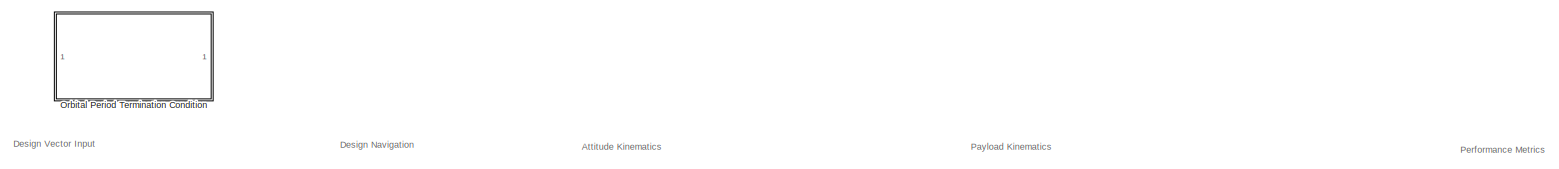
[diagram: root canvas - part 1/3, top center region]
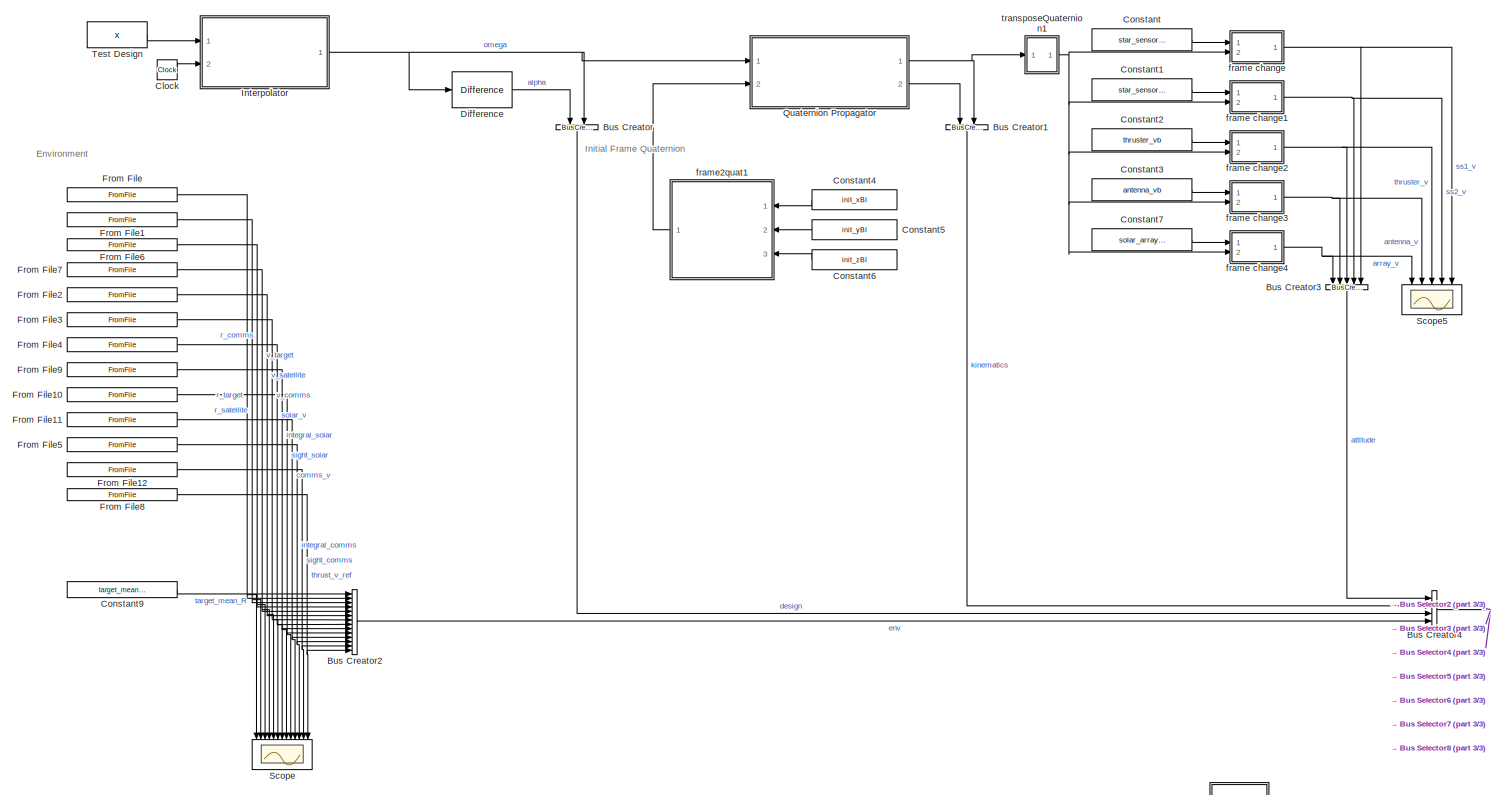
[diagram: root canvas - part 2/3, central region]
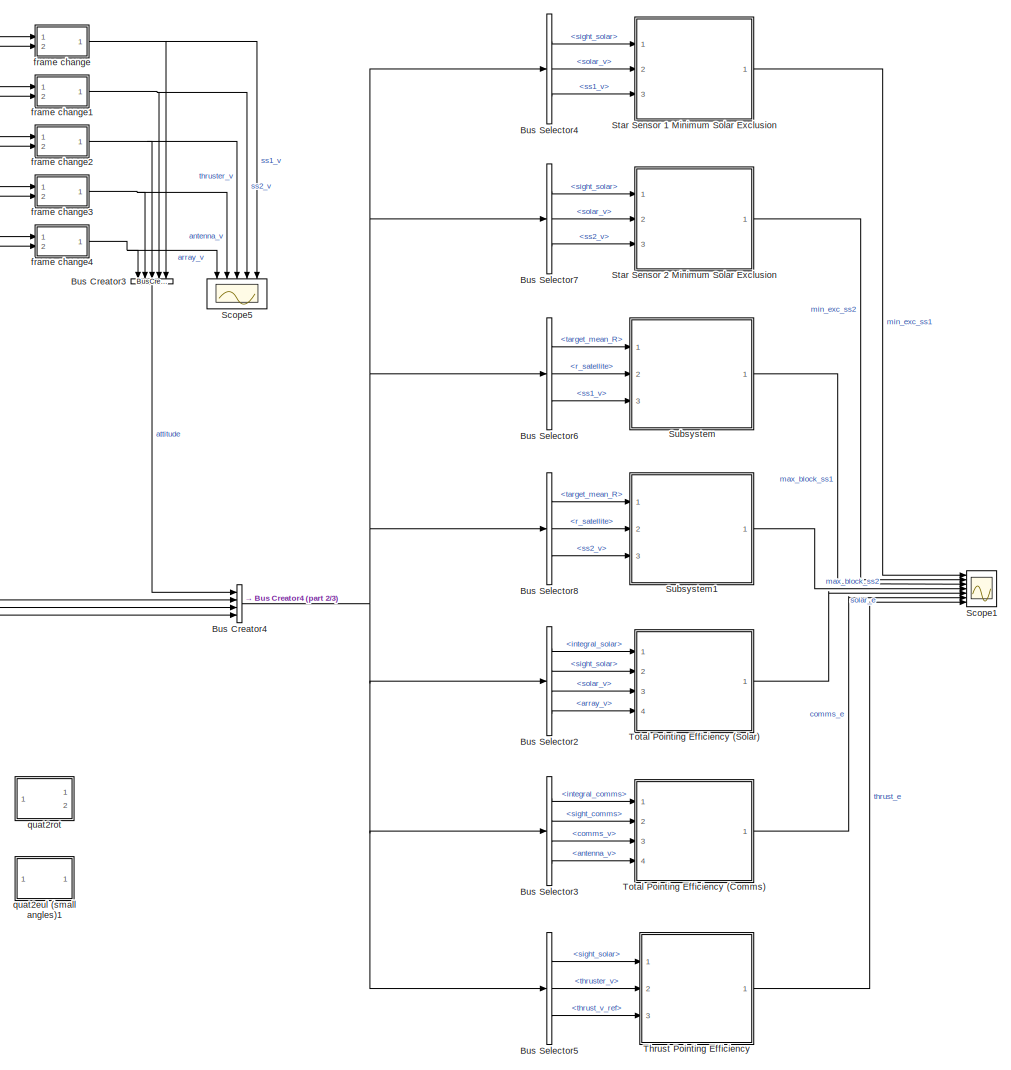
[diagram: root canvas - part 3/3, right side, full height]
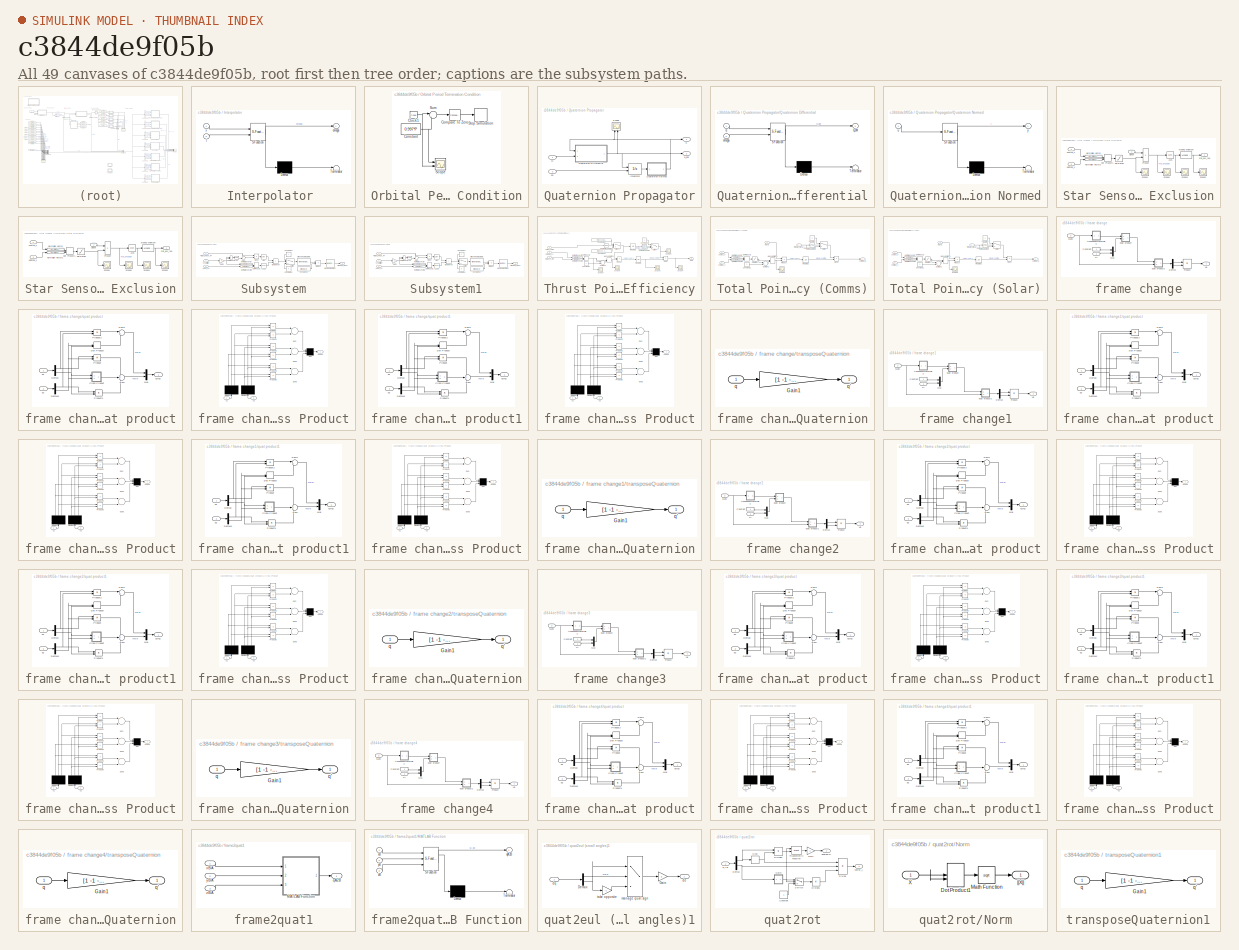
[diagram: thumbnail index - all 49 canvases of the model, root first then tree order]
MODEL slx_c3844de9f05b
KIND model
CONFIG AbsTol = auto
CONFIG EnableMultiTasking = off
CONFIG FixedStep = 10
CONFIG MaxStep = auto
CONFIG MinStep = auto
CONFIG RelTol = 1e-3
CONFIG SampleTimeConstraint = Unconstrained
CONFIG Solver = ode4
CONFIG SolverName = ode4
CONFIG StartTime = 0.0
CONFIG StopTime = 6530
BLOCK [BusCreator] Bus Creator
  DisplayOption = bar
  InheritFromInputs = on
  Inputs = 2
  Ports = [2, 1]
BLOCK [BusCreator] Bus Creator1
  DisplayOption = bar
  InheritFromInputs = on
  Inputs = 2
  Ports = [2, 1]
BLOCK [BusCreator] Bus Creator2
  DisplayOption = bar
  InheritFromInputs = on
  Inputs = 14
  Ports = [14, 1]
BLOCK [BusCreator] Bus Creator3
  DisplayOption = bar
  InheritFromInputs = on
  Inputs = 5
  Ports = [5, 1]
BLOCK [BusCreator] Bus Creator4
  DisplayOption = bar
  InheritFromInputs = on
  Inputs = 4
  Ports = [4, 1]
BLOCK [BusSelector] Bus Selector2
  OutputAsBus = off
  OutputSignals = env.integral_solar,env.sight_solar,env.solar_v,attitude.array_v
  Ports = [1, 4]
BLOCK [BusSelector] Bus Selector3
  OutputAsBus = off
  OutputSignals = env.integral_comms,env.sight_comms,env.comms_v,attitude.antenna_v
  Ports = [1, 4]
BLOCK [BusSelector] Bus Selector4
  OutputAsBus = off
  OutputSignals = env.sight_solar,env.solar_v,attitude.ss1_v
  Ports = [1, 3]
BLOCK [BusSelector] Bus Selector5
  OutputAsBus = off
  OutputSignals = env.sight_solar,attitude.thruster_v,env.thrust_v_ref
  Ports = [1, 3]
BLOCK [BusSelector] Bus Selector6
  OutputAsBus = off
  OutputSignals = env.target_mean_R,env.r_satellite,attitude.ss1_v
  Ports = [1, 3]
BLOCK [BusSelector] Bus Selector7
  OutputAsBus = off
  OutputSignals = env.sight_solar,env.solar_v,attitude.ss2_v
  Ports = [1, 3]
BLOCK [BusSelector] Bus Selector8
  OutputAsBus = off
  OutputSignals = env.target_mean_R,env.r_satellite,attitude.ss2_v
  Ports = [1, 3]
BLOCK [Clock] Clock
BLOCK [Constant] Constant
  Value = star_sensor_1_vb
BLOCK [Constant] Constant1
  Value = star_sensor_2_vb
BLOCK [Constant] Constant2
  Value = thruster_vb
BLOCK [Constant] Constant3
  Value = antenna_vb
BLOCK [Constant] Constant4
  Value = init_xBI
BLOCK [Constant] Constant5
  Value = init_yBI
BLOCK [Constant] Constant6
  Value = init_zBI
BLOCK [Constant] Constant7
  Value = solar_array_vb
BLOCK [Constant] Constant9
  Value = target_mean_radius
BLOCK [Reference] Difference  REF=simulink/Discrete/Difference
  Ports = [1, 1]
  SourceBlock = simulink/Discrete/Difference
  SourceProductBaseCode = SL
  SourceProductName = Simulink
  SourceType = Difference
BLOCK [FromFile] From File
  FileName = env/r_target.mat
  SampleTime = 0
BLOCK [FromFile] From File1
  FileName = env/r_satellite.mat
  SampleTime = 0
BLOCK [FromFile] From File10
  FileName = env/sight_solar.mat
  SampleTime = 0
BLOCK [FromFile] From File11
  FileName = env/comms_v.mat
  SampleTime = 0
BLOCK [FromFile] From File12
  FileName = env/sight_comms.mat
  SampleTime = 0
BLOCK [FromFile] From File2
  FileName = env/v_satellite.mat
  SampleTime = 0
BLOCK [FromFile] From File3
  FileName = env/v_comms.mat
  SampleTime = 0
BLOCK [FromFile] From File4
  FileName = env/solar_v.mat
  SampleTime = 0
BLOCK [FromFile] From File5
  FileName = env/integral_comms.mat
  SampleTime = 0
BLOCK [FromFile] From File6
  FileName = env/r_comms.mat
  SampleTime = 0
BLOCK [FromFile] From File7
  FileName = env/v_target.mat
  SampleTime = 0
BLOCK [FromFile] From File8
  FileName = env/thrust_v_ref.mat
  SampleTime = 0
BLOCK [FromFile] From File9
  FileName = env/integral_solar.mat
  SampleTime = 0
BLOCK [SubSystem] Interpolator 
  ErrorFcn = Stateflow.Translate.translate
  PermitHierarchicalResolution = ExplicitOnly
  Ports = [2, 1]
  RequestExecContextInheritance = off
  SFBlockType = MATLAB Function
  TreatAsAtomicUnit = on
BLOCK [Demux] Interpolator / Demux 
  Outputs = 1
  Ports = [1, 1]
BLOCK [S-Function] Interpolator / SFunction 
  EnableBusSupport = on
  FunctionName = sf_sfun
  PortCounts = [2 2]
  Ports = [2, 2]
  SFcnIsStateOwnerBlock = off
  SFunctionDeploymentMode = off
  Tag = Stateflow S-Function 4
BLOCK [Terminator] Interpolator / Terminator 
BLOCK [Outport] Interpolator /omega
  IconDisplay = Port number
BLOCK [Inport] Interpolator /t
  IconDisplay = Port number
  Port = 2
BLOCK [Inport] Interpolator /x
  IconDisplay = Port number
BLOCK [SubSystem] Orbital Period Termination Condition
  Ports = []
  RequestExecContextInheritance = off
BLOCK [Clock] Orbital Period Termination Condition/Clock1
BLOCK [Reference] Orbital Period Termination Condition/Compare To Zero  REF=simulink/Logic and Bit
Operations/Compare
To Zero
  Ports = [1, 1]
  SourceBlock = simulink/Logic and Bit\nOperations/Compare\nTo Zero
  SourceProductBaseCode = SL
  SourceProductName = Simulink
  SourceType = Compare To Zero
BLOCK [Constant] Orbital Period Termination Condition/Constant
  Value = 0.997*P
BLOCK [Scope] Orbital Period Termination Condition/Scope
  Floating = off
  NumInputPorts = 2
  Ports = [2]
  ScopeSpecificationString = Simulink.scopes.TimeScopeBlockCfg('CurrentConfiguration', extmgr.ConfigurationSet(extmgr.Configuration('Core','General UI',true),extmgr.Configuration('Core','Source UI',true),extmgr.Configuration('Sources','WiredSimulink',true,'DataLoggingVariableName','ScopeData1'),extmgr.Configuration('Visuals','Time Domain',true,'SerializedDisplays',{struct('MinYLimReal','-816.15951','MaxYLimReal','7345.43558',...<+1442ch>
BLOCK [Stop] Orbital Period Termination Condition/Stop Simulation
BLOCK [Sum] Orbital Period Termination Condition/Sum
  IconShape = round
  InputSameDT = off
  Inputs = |-+
  OutDataTypeStr = Inherit: Inherit via internal rule
  Ports = [2, 1]
  SaturateOnIntegerOverflow = off
BLOCK [SubSystem] Quaternion Propagator
  Ports = [2, 2]
  RequestExecContextInheritance = off
BLOCK [Integrator] Quaternion Propagator/Integrator
  InitialConditionSource = external
  Ports = [2, 1]
BLOCK [SubSystem] Quaternion Propagator/Quaternion Differential
  ErrorFcn = Stateflow.Translate.translate
  PermitHierarchicalResolution = ExplicitOnly
  Ports = [2, 1]
  RequestExecContextInheritance = off
  SFBlockType = MATLAB Function
  TreatAsAtomicUnit = on
BLOCK [Demux] Quaternion Propagator/Quaternion Differential/ Demux 
  Outputs = 1
  Ports = [1, 1]
BLOCK [S-Function] Quaternion Propagator/Quaternion Differential/ SFunction 
  EnableBusSupport = on
  FunctionName = sf_sfun
  PortCounts = [2 2]
  Ports = [2, 2]
  SFcnIsStateOwnerBlock = off
  SFunctionDeploymentMode = off
  Tag = Stateflow S-Function 5
BLOCK [Terminator] Quaternion Propagator/Quaternion Differential/ Terminator 
BLOCK [Inport] Quaternion Propagator/Quaternion Differential/omega
  IconDisplay = Port number
  Port = 2
BLOCK [Inport] Quaternion Propagator/Quaternion Differential/q
  IconDisplay = Port number
BLOCK [Outport] Quaternion Propagator/Quaternion Differential/q_dot
  IconDisplay = Port number
BLOCK [SubSystem] Quaternion Propagator/Quaternion Normed
  ErrorFcn = Stateflow.Translate.translate
  PermitHierarchicalResolution = ExplicitOnly
  Ports = [1, 1]
  RequestExecContextInheritance = off
  SFBlockType = MATLAB Function
  TreatAsAtomicUnit = on
BLOCK [Demux] Quaternion Propagator/Quaternion Normed/ Demux 
  Outputs = 1
  Ports = [1, 1]
BLOCK [S-Function] Quaternion Propagator/Quaternion Normed/ SFunction 
  EnableBusSupport = on
  FunctionName = sf_sfun
  PortCounts = [1 2]
  Ports = [1, 2]
  SFcnIsStateOwnerBlock = off
  SFunctionDeploymentMode = off
  Tag = Stateflow S-Function 6
BLOCK [Terminator] Quaternion Propagator/Quaternion Normed/ Terminator 
BLOCK [Inport] Quaternion Propagator/Quaternion Normed/u
  IconDisplay = Port number
BLOCK [Outport] Quaternion Propagator/Quaternion Normed/y
  IconDisplay = Port number
BLOCK [Scope] Quaternion Propagator/Scope
  Floating = off
  NumInputPorts = 2
  Ports = [2]
  ScopeSpecificationString = Simulink.scopes.TimeScopeBlockCfg('CurrentConfiguration', extmgr.ConfigurationSet(extmgr.Configuration('Core','General UI',true),extmgr.Configuration('Core','Source UI',true),extmgr.Configuration('Sources','WiredSimulink',true),extmgr.Configuration('Visuals','Time Domain',true,'SerializedDisplays',{struct('MinYLimReal','-1.24547','MaxYLimReal','1.2495','YLabelReal','','MinYLimMag','0.00000','MaxYL...<+2225ch>
BLOCK [Inport] Quaternion Propagator/W
  IconDisplay = Port number
BLOCK [Outport] Quaternion Propagator/q
  IconDisplay = Port number
BLOCK [Inport] Quaternion Propagator/q0
  IconDisplay = Port number
  Port = 2
BLOCK [Outport] Quaternion Propagator/q_dot
  IconDisplay = Port number
  Port = 2
BLOCK [Scope] Scope
  Floating = off
  NumInputPorts = 13
  Ports = [13]
  ScopeSpecificationString = Simulink.scopes.TimeScopeBlockCfg('CurrentConfiguration', extmgr.ConfigurationSet(extmgr.Configuration('Core','General UI',true),extmgr.Configuration('Core','Source UI',true),extmgr.Configuration('Sources','WiredSimulink',true,'DataLoggingVariableName','ScopeData1'),extmgr.Configuration('Visuals','Time Domain',true,'SerializedDisplays',{struct('MinYLimReal','-28499999999.99999','MaxYLimReal','2565...<+12479ch>
BLOCK [Scope] Scope1
  Floating = off
  NumInputPorts = 7
  Ports = [7]
  ScopeSpecificationString = Simulink.scopes.TimeScopeBlockCfg('CurrentConfiguration', extmgr.ConfigurationSet(extmgr.Configuration('Core','General UI',true),extmgr.Configuration('Core','Source UI',true),extmgr.Configuration('Sources','WiredSimulink',true,'DataLoggingVariableName','ScopeData3'),extmgr.Configuration('Visuals','Time Domain',true,'SerializedDisplays',{struct('MinYLimReal','0.31377','MaxYLimReal','1.71047','YLabe...<+6268ch>
BLOCK [Scope] Scope5
  Floating = off
  NumInputPorts = 5
  Ports = [5]
  ScopeSpecificationString = Simulink.scopes.TimeScopeBlockCfg('CurrentConfiguration', extmgr.ConfigurationSet(extmgr.Configuration('Core','General UI',true),extmgr.Configuration('Core','Source UI',true),extmgr.Configuration('Sources','WiredSimulink',true,'DataLoggingVariableName','ScopeData7'),extmgr.Configuration('Visuals','Time Domain',true,'SerializedDisplays',{struct('MinYLimReal','-1.25','MaxYLimReal','1.25','YLabelReal...<+6533ch>
BLOCK [SubSystem] Star Sensor 1 Minimum Solar Exclusion
  Ports = [3, 1]
  RequestExecContextInheritance = off
BLOCK [Trigonometry] Star Sensor 1 Minimum Solar Exclusion/Acos
  Operator = acos
  Ports = [1, 1]
BLOCK [DotProduct] Star Sensor 1 Minimum Solar Exclusion/Dot Product1
  OutDataTypeStr = Inherit: Inherit via internal rule
BLOCK [Reference] Star Sensor 1 Minimum Solar Exclusion/Moving Minimum  REF=dspstat3/Moving
Minimum
  Ports = [1, 1]
  SourceBlock = dspstat3/Moving\nMinimum
  SourceProductBaseCode = DS
  SourceProductName = DSP System Toolbox
  SourceType = dsp.MovingMinimum
BLOCK [Reference] Star Sensor 1 Minimum Solar Exclusion/Normalize Vector  REF=vrlib/Utilities/Normalize Vector
  Ports = [1, 1]
  SourceBlock = vrlib/Utilities/Normalize Vector
  SourceProductBaseCode = SL
  SourceProductName = Simulink
  SourceType = Normalize Vector
BLOCK [Reference] Star Sensor 1 Minimum Solar Exclusion/Normalize Vector1  REF=vrlib/Utilities/Normalize Vector
  Ports = [1, 1]
  SourceBlock = vrlib/Utilities/Normalize Vector
  SourceProductBaseCode = SL
  SourceProductName = Simulink
  SourceType = Normalize Vector
BLOCK [Product] Star Sensor 1 Minimum Solar Exclusion/Product
  InputSameDT = off
  OutDataTypeStr = Inherit: Inherit via internal rule
  Ports = [2, 1]
  RndMeth = Floor
  SaturateOnIntegerOverflow = off
BLOCK [Saturate] Star Sensor 1 Minimum Solar Exclusion/Saturation
  InputPortMap = u0
  LowerLimit = 0
  Ports = [1, 1]
  UpperLimit = 1.0
BLOCK [Scope] Star Sensor 1 Minimum Solar Exclusion/Scope1
  Floating = off
  NumInputPorts = 1
  Ports = [1]
  ScopeSpecificationString = Simulink.scopes.TimeScopeBlockCfg('CurrentConfiguration', extmgr.ConfigurationSet(extmgr.Configuration('Core','General UI',true),extmgr.Configuration('Core','Source UI',true),extmgr.Configuration('Sources','WiredSimulink',true,'DataLoggingVariableName','ScopeData5'),extmgr.Configuration('Visuals','Time Domain',true,'SerializedDisplays',{struct('MinYLimReal','-0.125','MaxYLimReal','1.125','YLabelRe...<+1391ch>
BLOCK [Scope] Star Sensor 1 Minimum Solar Exclusion/Scope2
  Floating = off
  NumInputPorts = 1
  Ports = [1]
  ScopeSpecificationString = Simulink.scopes.TimeScopeBlockCfg('CurrentConfiguration', extmgr.ConfigurationSet(extmgr.Configuration('Core','General UI',true),extmgr.Configuration('Core','Source UI',true),extmgr.Configuration('Sources','WiredSimulink',true,'DataLoggingVariableName','ScopeData6'),extmgr.Configuration('Visuals','Time Domain',true,'SerializedDisplays',{struct('MinYLimReal','0.31377','MaxYLimReal','1.71047','YLabe...<+1401ch>
BLOCK [Scope] Star Sensor 1 Minimum Solar Exclusion/Scope3
  Floating = off
  NumInputPorts = 1
  Ports = [1]
  ScopeSpecificationString = Simulink.scopes.TimeScopeBlockCfg('CurrentConfiguration', extmgr.ConfigurationSet(extmgr.Configuration('Core','General UI',true),extmgr.Configuration('Core','Source UI',true),extmgr.Configuration('Sources','WiredSimulink',true,'DataLoggingVariableName','ScopeData7'),extmgr.Configuration('Visuals','Time Domain',true,'SerializedDisplays',{struct('MinYLimReal','0.31377','MaxYLimReal','1.71047','YLabe...<+1391ch>
BLOCK [Scope] Star Sensor 1 Minimum Solar Exclusion/Scope6
  Floating = off
  NumInputPorts = 1
  Ports = [1]
  ScopeSpecificationString = Simulink.scopes.TimeScopeBlockCfg('CurrentConfiguration', extmgr.ConfigurationSet(extmgr.Configuration('Core','General UI',true),extmgr.Configuration('Core','Source UI',true),extmgr.Configuration('Sources','WiredSimulink',true,'DataLoggingVariableName','ScopeData6'),extmgr.Configuration('Visuals','Time Domain',true,'SerializedDisplays',{struct('MinYLimReal','-0.125','MaxYLimReal','1.125','YLabelRe...<+1391ch>  <repeated x4 — deduplicated; at blocks: Scope6>
BLOCK [Outport] Star Sensor 1 Minimum Solar Exclusion/min_exc_req
  IconDisplay = Port number
BLOCK [Inport] Star Sensor 1 Minimum Solar Exclusion/pointing_v
  IconDisplay = Port number
  Port = 3
BLOCK [Inport] Star Sensor 1 Minimum Solar Exclusion/signal
  IconDisplay = Port number
BLOCK [Inport] Star Sensor 1 Minimum Solar Exclusion/source_v
  IconDisplay = Port number
  Port = 2
BLOCK [SubSystem] Star Sensor 2 Minimum Solar Exclusion
  Ports = [3, 1]
  RequestExecContextInheritance = off
BLOCK [Trigonometry] Star Sensor 2 Minimum Solar Exclusion/Acos
  Operator = acos
  Ports = [1, 1]
BLOCK [DotProduct] Star Sensor 2 Minimum Solar Exclusion/Dot Product1
  OutDataTypeStr = Inherit: Inherit via internal rule
BLOCK [Reference] Star Sensor 2 Minimum Solar Exclusion/Moving Minimum  REF=dspstat3/Moving
Minimum
  Ports = [1, 1]
  SourceBlock = dspstat3/Moving\nMinimum
  SourceProductBaseCode = DS
  SourceProductName = DSP System Toolbox
  SourceType = dsp.MovingMinimum
BLOCK [Reference] Star Sensor 2 Minimum Solar Exclusion/Normalize Vector  REF=vrlib/Utilities/Normalize Vector
  Ports = [1, 1]
  SourceBlock = vrlib/Utilities/Normalize Vector
  SourceProductBaseCode = SL
  SourceProductName = Simulink
  SourceType = Normalize Vector
BLOCK [Reference] Star Sensor 2 Minimum Solar Exclusion/Normalize Vector1  REF=vrlib/Utilities/Normalize Vector
  Ports = [1, 1]
  SourceBlock = vrlib/Utilities/Normalize Vector
  SourceProductBaseCode = SL
  SourceProductName = Simulink
  SourceType = Normalize Vector
BLOCK [Product] Star Sensor 2 Minimum Solar Exclusion/Product
  InputSameDT = off
  OutDataTypeStr = Inherit: Inherit via internal rule
  Ports = [2, 1]
  RndMeth = Floor
  SaturateOnIntegerOverflow = off
BLOCK [Saturate] Star Sensor 2 Minimum Solar Exclusion/Saturation
  InputPortMap = u0
  LowerLimit = 0
  Ports = [1, 1]
  UpperLimit = 1.0
BLOCK [Scope] Star Sensor 2 Minimum Solar Exclusion/Scope1
  Floating = off
  NumInputPorts = 1
  Ports = [1]
  ScopeSpecificationString = Simulink.scopes.TimeScopeBlockCfg('CurrentConfiguration', extmgr.ConfigurationSet(extmgr.Configuration('Core','General UI',true),extmgr.Configuration('Core','Source UI',true),extmgr.Configuration('Sources','WiredSimulink',true,'DataLoggingVariableName','ScopeData5'),extmgr.Configuration('Visuals','Time Domain',true,'SerializedDisplays',{struct('MinYLimReal','-0.125','MaxYLimReal','1.125','YLabelRe...<+1391ch>
BLOCK [Scope] Star Sensor 2 Minimum Solar Exclusion/Scope2
  Floating = off
  NumInputPorts = 1
  Ports = [1]
  ScopeSpecificationString = Simulink.scopes.TimeScopeBlockCfg('CurrentConfiguration', extmgr.ConfigurationSet(extmgr.Configuration('Core','General UI',true),extmgr.Configuration('Core','Source UI',true),extmgr.Configuration('Sources','WiredSimulink',true,'DataLoggingVariableName','ScopeData6'),extmgr.Configuration('Visuals','Time Domain',true,'SerializedDisplays',{struct('MinYLimReal','-0.1948','MaxYLimReal','1.76697','YLabe...<+1401ch>
BLOCK [Scope] Star Sensor 2 Minimum Solar Exclusion/Scope3
  Floating = off
  NumInputPorts = 1
  Ports = [1]
  ScopeSpecificationString = Simulink.scopes.TimeScopeBlockCfg('CurrentConfiguration', extmgr.ConfigurationSet(extmgr.Configuration('Core','General UI',true),extmgr.Configuration('Core','Source UI',true),extmgr.Configuration('Sources','WiredSimulink',true,'DataLoggingVariableName','ScopeData7'),extmgr.Configuration('Visuals','Time Domain',true,'SerializedDisplays',{struct('MinYLimReal','-0.18705','MaxYLimReal','1.76611','YLab...<+1393ch>
BLOCK [Scope] Star Sensor 2 Minimum Solar Exclusion/Scope6
  Floating = off
  NumInputPorts = 1
  Ports = [1]
BLOCK [Outport] Star Sensor 2 Minimum Solar Exclusion/min_exc_req
  IconDisplay = Port number
BLOCK [Inport] Star Sensor 2 Minimum Solar Exclusion/pointing_v
  IconDisplay = Port number
  Port = 3
BLOCK [Inport] Star Sensor 2 Minimum Solar Exclusion/signal
  IconDisplay = Port number
BLOCK [Inport] Star Sensor 2 Minimum Solar Exclusion/source_v
  IconDisplay = Port number
  Port = 2
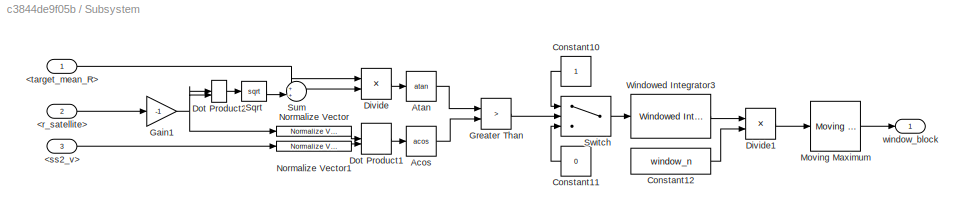
BLOCK [SubSystem] Subsystem
  Ports = [3, 1]
  RequestExecContextInheritance = off
BLOCK [Inport] Subsystem/<r_satellite>
  IconDisplay = Port number
  Port = 2
BLOCK [Inport] Subsystem/<ss2_v>
  IconDisplay = Port number
  Port = 3
BLOCK [Inport] Subsystem/<target_mean_R>
  IconDisplay = Port number
BLOCK [Trigonometry] Subsystem/Acos
  Operator = acos
  Ports = [1, 1]
BLOCK [Trigonometry] Subsystem/Atan
  Operator = atan
  Ports = [1, 1]
BLOCK [Constant] Subsystem/Constant10
BLOCK [Constant] Subsystem/Constant11
  Value = 0
BLOCK [Constant] Subsystem/Constant12
  Value = window_n
BLOCK [Product] Subsystem/Divide
  InputSameDT = off
  Inputs = */
  OutDataTypeStr = Inherit: Inherit via internal rule
  Ports = [2, 1]
  RndMeth = Floor
  SaturateOnIntegerOverflow = off
BLOCK [Product] Subsystem/Divide1
  InputSameDT = off
  Inputs = */
  OutDataTypeStr = Inherit: Inherit via internal rule
  Ports = [2, 1]
  RndMeth = Floor
  SaturateOnIntegerOverflow = off
BLOCK [DotProduct] Subsystem/Dot Product1
  OutDataTypeStr = Inherit: Inherit via internal rule
BLOCK [DotProduct] Subsystem/Dot Product2
  OutDataTypeStr = Inherit: Inherit via internal rule
BLOCK [Gain] Subsystem/Gain1
  Gain = -1
  OutDataTypeStr = Inherit: Inherit via internal rule
  ParamDataTypeStr = Inherit: Inherit via internal rule
  SaturateOnIntegerOverflow = off
BLOCK [RelationalOperator] Subsystem/Greater Than
  InputSameDT = off
  Operator = >
  OutDataTypeStr = boolean
  Ports = [2, 1]
  RndMeth = Simplest
BLOCK [Reference] Subsystem/Moving Maximum  REF=dspstat3/Moving
Maximum
  Ports = [1, 1]
  SourceBlock = dspstat3/Moving\nMaximum
  SourceProductBaseCode = DS
  SourceProductName = DSP System Toolbox
  SourceType = dsp.MovingMaximum
BLOCK [Reference] Subsystem/Normalize Vector  REF=vrlib/Utilities/Normalize Vector
  Ports = [1, 1]
  SourceBlock = vrlib/Utilities/Normalize Vector
  SourceProductBaseCode = SL
  SourceProductName = Simulink
  SourceType = Normalize Vector
BLOCK [Reference] Subsystem/Normalize Vector1  REF=vrlib/Utilities/Normalize Vector
  Ports = [1, 1]
  SourceBlock = vrlib/Utilities/Normalize Vector
  SourceProductBaseCode = SL
  SourceProductName = Simulink
  SourceType = Normalize Vector
BLOCK [Sqrt] Subsystem/Sqrt
BLOCK [Sum] Subsystem/Sum
  IconShape = round
  InputSameDT = off
  Inputs = ++|
  OutDataTypeStr = Inherit: Inherit via internal rule
  Ports = [2, 1]
  SaturateOnIntegerOverflow = off
BLOCK [Switch] Subsystem/Switch
  Criteria = u2 > Threshold
  InputSameDT = off
  SaturateOnIntegerOverflow = off
BLOCK [Reference] Subsystem/Windowed Integrator3  REF=commfilt2/Windowed
Integrator
  Ports = [1, 1]
  SourceBlock = commfilt2/Windowed\nIntegrator
  SourceProductBaseCode = CM
  SourceProductName = Communications Toolbox
  SourceType = Windowed Integrator
  UserDataPersistent = on
BLOCK [Outport] Subsystem/window_block
  IconDisplay = Port number
BLOCK [SubSystem] Subsystem1
  Ports = [3, 1]
  RequestExecContextInheritance = off
BLOCK [Inport] Subsystem1/<r_satellite>
  IconDisplay = Port number
  Port = 2
BLOCK [Inport] Subsystem1/<ss2_v>
  IconDisplay = Port number
  Port = 3
BLOCK [Inport] Subsystem1/<target_mean_R>
  IconDisplay = Port number
BLOCK [Trigonometry] Subsystem1/Acos
  Operator = acos
  Ports = [1, 1]
BLOCK [Trigonometry] Subsystem1/Atan
  Operator = atan
  Ports = [1, 1]
BLOCK [Constant] Subsystem1/Constant10
BLOCK [Constant] Subsystem1/Constant11
  Value = 0
BLOCK [Constant] Subsystem1/Constant12
  Value = window_n
BLOCK [Product] Subsystem1/Divide
  InputSameDT = off
  Inputs = */
  OutDataTypeStr = Inherit: Inherit via internal rule
  Ports = [2, 1]
  RndMeth = Floor
  SaturateOnIntegerOverflow = off
BLOCK [Product] Subsystem1/Divide1
  InputSameDT = off
  Inputs = */
  OutDataTypeStr = Inherit: Inherit via internal rule
  Ports = [2, 1]
  RndMeth = Floor
  SaturateOnIntegerOverflow = off
BLOCK [DotProduct] Subsystem1/Dot Product1
  OutDataTypeStr = Inherit: Inherit via internal rule
BLOCK [DotProduct] Subsystem1/Dot Product2
  OutDataTypeStr = Inherit: Inherit via internal rule
BLOCK [Gain] Subsystem1/Gain1
  Gain = -1
  OutDataTypeStr = Inherit: Inherit via internal rule
  ParamDataTypeStr = Inherit: Inherit via internal rule
  SaturateOnIntegerOverflow = off
BLOCK [RelationalOperator] Subsystem1/Greater Than
  InputSameDT = off
  Operator = >
  OutDataTypeStr = boolean
  Ports = [2, 1]
  RndMeth = Simplest
BLOCK [Reference] Subsystem1/Moving Maximum  REF=dspstat3/Moving
Maximum
  Ports = [1, 1]
  SourceBlock = dspstat3/Moving\nMaximum
  SourceProductBaseCode = DS
  SourceProductName = DSP System Toolbox
  SourceType = dsp.MovingMaximum
BLOCK [Reference] Subsystem1/Normalize Vector  REF=vrlib/Utilities/Normalize Vector
  Ports = [1, 1]
  SourceBlock = vrlib/Utilities/Normalize Vector
  SourceProductBaseCode = SL
  SourceProductName = Simulink
  SourceType = Normalize Vector
BLOCK [Reference] Subsystem1/Normalize Vector1  REF=vrlib/Utilities/Normalize Vector
  Ports = [1, 1]
  SourceBlock = vrlib/Utilities/Normalize Vector
  SourceProductBaseCode = SL
  SourceProductName = Simulink
  SourceType = Normalize Vector
BLOCK [Sqrt] Subsystem1/Sqrt
BLOCK [Sum] Subsystem1/Sum
  IconShape = round
  InputSameDT = off
  Inputs = ++|
  OutDataTypeStr = Inherit: Inherit via internal rule
  Ports = [2, 1]
  SaturateOnIntegerOverflow = off
BLOCK [Switch] Subsystem1/Switch
  Criteria = u2 > Threshold
  InputSameDT = off
  SaturateOnIntegerOverflow = off
BLOCK [Reference] Subsystem1/Windowed Integrator3  REF=commfilt2/Windowed
Integrator
  Ports = [1, 1]
  SourceBlock = commfilt2/Windowed\nIntegrator
  SourceProductBaseCode = CM
  SourceProductName = Communications Toolbox
  SourceType = Windowed Integrator
  UserDataPersistent = on
BLOCK [Outport] Subsystem1/window_block
  IconDisplay = Port number
BLOCK [Constant] Test Design
  Value = x
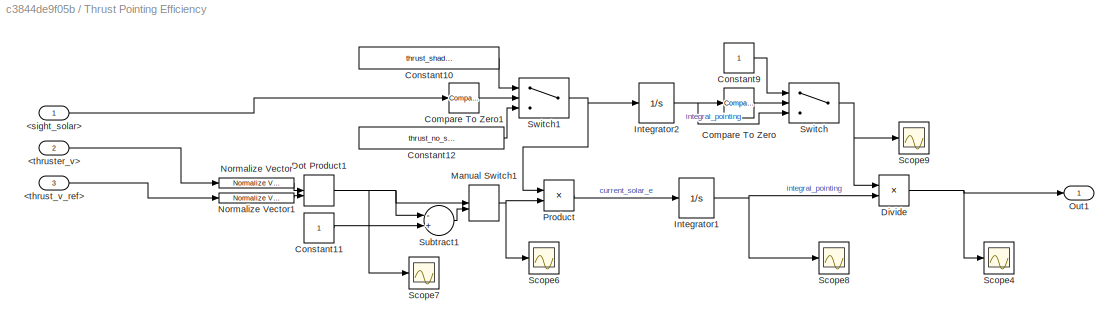
BLOCK [SubSystem] Thrust Pointing Efficiency
  Ports = [3, 1]
  RequestExecContextInheritance = off
BLOCK [Inport] Thrust Pointing Efficiency/<sight_solar>
  IconDisplay = Port number
BLOCK [Inport] Thrust Pointing Efficiency/<thrust_v_ref>
  IconDisplay = Port number
  Port = 3
BLOCK [Inport] Thrust Pointing Efficiency/<thruster_v>
  IconDisplay = Port number
  Port = 2
BLOCK [Reference] Thrust Pointing Efficiency/Compare To Zero  REF=simulink/Logic and Bit
Operations/Compare
To Zero
  Ports = [1, 1]
  SourceBlock = simulink/Logic and Bit\nOperations/Compare\nTo Zero
  SourceProductBaseCode = SL
  SourceProductName = Simulink
  SourceType = Compare To Zero
BLOCK [Reference] Thrust Pointing Efficiency/Compare To Zero1  REF=simulink/Logic and Bit
Operations/Compare
To Zero
  Ports = [1, 1]
  SourceBlock = simulink/Logic and Bit\nOperations/Compare\nTo Zero
  SourceProductBaseCode = SL
  SourceProductName = Simulink
  SourceType = Compare To Zero
BLOCK [Constant] Thrust Pointing Efficiency/Constant10
  Value = thrust_shadow_weight
BLOCK [Constant] Thrust Pointing Efficiency/Constant11
BLOCK [Constant] Thrust Pointing Efficiency/Constant12
  Value = thrust_no_shadow_weight
BLOCK [Constant] Thrust Pointing Efficiency/Constant9
BLOCK [Product] Thrust Pointing Efficiency/Divide
  InputSameDT = off
  Inputs = /*
  OutDataTypeStr = Inherit: Inherit via internal rule
  Ports = [2, 1]
  RndMeth = Floor
  SaturateOnIntegerOverflow = off
BLOCK [DotProduct] Thrust Pointing Efficiency/Dot Product1
  OutDataTypeStr = Inherit: Inherit via internal rule
BLOCK [Integrator] Thrust Pointing Efficiency/Integrator1
  Ports = [1, 1]
BLOCK [Integrator] Thrust Pointing Efficiency/Integrator2
  Ports = [1, 1]
BLOCK [ManualSwitch] Thrust Pointing Efficiency/Manual Switch1
BLOCK [Reference] Thrust Pointing Efficiency/Normalize Vector  REF=vrlib/Utilities/Normalize Vector
  Ports = [1, 1]
  SourceBlock = vrlib/Utilities/Normalize Vector
  SourceProductBaseCode = SL
  SourceProductName = Simulink
  SourceType = Normalize Vector
BLOCK [Reference] Thrust Pointing Efficiency/Normalize Vector1  REF=vrlib/Utilities/Normalize Vector
  Ports = [1, 1]
  SourceBlock = vrlib/Utilities/Normalize Vector
  SourceProductBaseCode = SL
  SourceProductName = Simulink
  SourceType = Normalize Vector
BLOCK [Outport] Thrust Pointing Efficiency/Out1
  IconDisplay = Port number
BLOCK [Product] Thrust Pointing Efficiency/Product
  InputSameDT = off
  OutDataTypeStr = Inherit: Inherit via internal rule
  Ports = [2, 1]
  RndMeth = Floor
  SaturateOnIntegerOverflow = off
BLOCK [Scope] Thrust Pointing Efficiency/Scope4
  Floating = off
  NumInputPorts = 1
  Ports = [1]
  ScopeSpecificationString = Simulink.scopes.TimeScopeBlockCfg('CurrentConfiguration', extmgr.ConfigurationSet(extmgr.Configuration('Core','General UI',true),extmgr.Configuration('Core','Source UI',true),extmgr.Configuration('Sources','WiredSimulink',true,'DataLoggingVariableName','ScopeData5'),extmgr.Configuration('Visuals','Time Domain',true,'SerializedDisplays',{struct('MinYLimReal','-0.125','MaxYLimReal','1.125','YLabelRe...<+1383ch>
BLOCK [Scope] Thrust Pointing Efficiency/Scope6
  Floating = off
  NumInputPorts = 1
  Ports = [1]
  ScopeSpecificationString = Simulink.scopes.TimeScopeBlockCfg('CurrentConfiguration', extmgr.ConfigurationSet(extmgr.Configuration('Core','General UI',true),extmgr.Configuration('Core','Source UI',true),extmgr.Configuration('Sources','WiredSimulink',true,'DataLoggingVariableName','ScopeData4'),extmgr.Configuration('Visuals','Time Domain',true,'SerializedDisplays',{struct('MinYLimReal','0.9','MaxYLimReal','2.00000','YLabelRea...<+1384ch>
BLOCK [Scope] Thrust Pointing Efficiency/Scope7
  Floating = off
  NumInputPorts = 1
  Ports = [1]
  ScopeSpecificationString = Simulink.scopes.TimeScopeBlockCfg('CurrentConfiguration', extmgr.ConfigurationSet(extmgr.Configuration('Core','General UI',true),extmgr.Configuration('Core','Source UI',true),extmgr.Configuration('Sources','WiredSimulink',true,'DataLoggingVariableName','ScopeData8'),extmgr.Configuration('Visuals','Time Domain',true,'SerializedDisplays',{struct('MinYLimReal','0.9','MaxYLimReal','2.00000','YLabelRea...<+1382ch>
BLOCK [Scope] Thrust Pointing Efficiency/Scope8
  Floating = off
  NumInputPorts = 1
  Ports = [1]
  ScopeSpecificationString = Simulink.scopes.TimeScopeBlockCfg('CurrentConfiguration', extmgr.ConfigurationSet(extmgr.Configuration('Core','General UI',true),extmgr.Configuration('Core','Source UI',true),extmgr.Configuration('Sources','WiredSimulink',true,'DataLoggingVariableName','ScopeData1'),extmgr.Configuration('Visuals','Time Domain',true,'SerializedDisplays',{struct('MinYLimReal','-631.43563','MaxYLimReal','5682.92068',...<+1439ch>
BLOCK [Scope] Thrust Pointing Efficiency/Scope9
  Floating = off
  NumInputPorts = 1
  Ports = [1]
  ScopeSpecificationString = Simulink.scopes.TimeScopeBlockCfg('CurrentConfiguration', extmgr.ConfigurationSet(extmgr.Configuration('Core','General UI',true),extmgr.Configuration('Core','Source UI',true),extmgr.Configuration('Sources','WiredSimulink',true,'DataLoggingVariableName','ScopeData2'),extmgr.Configuration('Visuals','Time Domain',true,'SerializedDisplays',{struct('MinYLimReal','-812.625','MaxYLimReal','7323.625','YLa...<+1401ch>
BLOCK [Sum] Thrust Pointing Efficiency/Subtract1
  InputSameDT = off
  Inputs = -+
  OutDataTypeStr = Inherit: Inherit via internal rule
  Ports = [2, 1]
  SaturateOnIntegerOverflow = off
BLOCK [Switch] Thrust Pointing Efficiency/Switch
  Criteria = u2 > Threshold
  InputSameDT = off
  SaturateOnIntegerOverflow = off
BLOCK [Switch] Thrust Pointing Efficiency/Switch1
  Criteria = u2 > Threshold
  InputSameDT = off
  SaturateOnIntegerOverflow = off
BLOCK [SubSystem] Total Pointing Efficiency (Comms)
  Ports = [4, 1]
  RequestExecContextInheritance = off
BLOCK [Reference] Total Pointing Efficiency (Comms)/Compare To Zero  REF=simulink/Logic and Bit
Operations/Compare
To Zero
  Ports = [1, 1]
  SourceBlock = simulink/Logic and Bit\nOperations/Compare\nTo Zero
  SourceProductBaseCode = SL
  SourceProductName = Simulink
  SourceType = Compare To Zero
BLOCK [Constant] Total Pointing Efficiency (Comms)/Constant
BLOCK [Constant] Total Pointing Efficiency (Comms)/Constant11
BLOCK [Product] Total Pointing Efficiency (Comms)/Divide
  InputSameDT = off
  Inputs = /*
  OutDataTypeStr = Inherit: Inherit via internal rule
  Ports = [2, 1]
  RndMeth = Floor
  SaturateOnIntegerOverflow = off
BLOCK [DotProduct] Total Pointing Efficiency (Comms)/Dot Product1
  OutDataTypeStr = Inherit: Inherit via internal rule
BLOCK [Integrator] Total Pointing Efficiency (Comms)/Integrator1
  Ports = [1, 1]
BLOCK [ManualSwitch] Total Pointing Efficiency (Comms)/Manual Switch1
BLOCK [Reference] Total Pointing Efficiency (Comms)/Normalize Vector  REF=vrlib/Utilities/Normalize Vector
  Ports = [1, 1]
  SourceBlock = vrlib/Utilities/Normalize Vector
  SourceProductBaseCode = SL
  SourceProductName = Simulink
  SourceType = Normalize Vector
BLOCK [Reference] Total Pointing Efficiency (Comms)/Normalize Vector1  REF=vrlib/Utilities/Normalize Vector
  Ports = [1, 1]
  SourceBlock = vrlib/Utilities/Normalize Vector
  SourceProductBaseCode = SL
  SourceProductName = Simulink
  SourceType = Normalize Vector
BLOCK [Product] Total Pointing Efficiency (Comms)/Product
  InputSameDT = off
  OutDataTypeStr = Inherit: Inherit via internal rule
  Ports = [2, 1]
  RndMeth = Floor
  SaturateOnIntegerOverflow = off
BLOCK [Saturate] Total Pointing Efficiency (Comms)/Saturation
  InputPortMap = u0
  LowerLimit = 0
  Ports = [1, 1]
  UpperLimit = 1.0
BLOCK [Scope] Total Pointing Efficiency (Comms)/Scope6
  Floating = off
  NumInputPorts = 1
  Ports = [1]
BLOCK [Sum] Total Pointing Efficiency (Comms)/Subtract1
  InputSameDT = off
  Inputs = -+
  OutDataTypeStr = Inherit: Inherit via internal rule
  Ports = [2, 1]
  SaturateOnIntegerOverflow = off
BLOCK [Switch] Total Pointing Efficiency (Comms)/Switch
  Criteria = u2 > Threshold
  InputSameDT = off
  SaturateOnIntegerOverflow = off
BLOCK [Inport] Total Pointing Efficiency (Comms)/integral_signal
  IconDisplay = Port number
BLOCK [Outport] Total Pointing Efficiency (Comms)/pointing_e
  IconDisplay = Port number
BLOCK [Inport] Total Pointing Efficiency (Comms)/pointing_v
  IconDisplay = Port number
  Port = 4
BLOCK [Inport] Total Pointing Efficiency (Comms)/signal
  IconDisplay = Port number
  Port = 2
BLOCK [Inport] Total Pointing Efficiency (Comms)/source_v
  IconDisplay = Port number
  Port = 3
BLOCK [SubSystem] Total Pointing Efficiency (Solar)
  Ports = [4, 1]
  RequestExecContextInheritance = off
BLOCK [Reference] Total Pointing Efficiency (Solar)/Compare To Zero  REF=simulink/Logic and Bit
Operations/Compare
To Zero
  Ports = [1, 1]
  SourceBlock = simulink/Logic and Bit\nOperations/Compare\nTo Zero
  SourceProductBaseCode = SL
  SourceProductName = Simulink
  SourceType = Compare To Zero
BLOCK [Constant] Total Pointing Efficiency (Solar)/Constant
BLOCK [Constant] Total Pointing Efficiency (Solar)/Constant11
BLOCK [Product] Total Pointing Efficiency (Solar)/Divide
  InputSameDT = off
  Inputs = /*
  OutDataTypeStr = Inherit: Inherit via internal rule
  Ports = [2, 1]
  RndMeth = Floor
  SaturateOnIntegerOverflow = off
BLOCK [DotProduct] Total Pointing Efficiency (Solar)/Dot Product1
  OutDataTypeStr = Inherit: Inherit via internal rule
BLOCK [Integrator] Total Pointing Efficiency (Solar)/Integrator1
  Ports = [1, 1]
BLOCK [ManualSwitch] Total Pointing Efficiency (Solar)/Manual Switch1
BLOCK [Reference] Total Pointing Efficiency (Solar)/Normalize Vector  REF=vrlib/Utilities/Normalize Vector
  Ports = [1, 1]
  SourceBlock = vrlib/Utilities/Normalize Vector
  SourceProductBaseCode = SL
  SourceProductName = Simulink
  SourceType = Normalize Vector
BLOCK [Reference] Total Pointing Efficiency (Solar)/Normalize Vector1  REF=vrlib/Utilities/Normalize Vector
  Ports = [1, 1]
  SourceBlock = vrlib/Utilities/Normalize Vector
  SourceProductBaseCode = SL
  SourceProductName = Simulink
  SourceType = Normalize Vector
BLOCK [Product] Total Pointing Efficiency (Solar)/Product
  InputSameDT = off
  OutDataTypeStr = Inherit: Inherit via internal rule
  Ports = [2, 1]
  RndMeth = Floor
  SaturateOnIntegerOverflow = off
BLOCK [Saturate] Total Pointing Efficiency (Solar)/Saturation
  InputPortMap = u0
  LowerLimit = 0
  Ports = [1, 1]
  UpperLimit = 1.0
BLOCK [Scope] Total Pointing Efficiency (Solar)/Scope6
  Floating = off
  NumInputPorts = 1
  Ports = [1]
BLOCK [Sum] Total Pointing Efficiency (Solar)/Subtract1
  InputSameDT = off
  Inputs = -+
  OutDataTypeStr = Inherit: Inherit via internal rule
  Ports = [2, 1]
  SaturateOnIntegerOverflow = off
BLOCK [Switch] Total Pointing Efficiency (Solar)/Switch
  Criteria = u2 > Threshold
  InputSameDT = off
  SaturateOnIntegerOverflow = off
BLOCK [Inport] Total Pointing Efficiency (Solar)/integral_signal
  IconDisplay = Port number
BLOCK [Outport] Total Pointing Efficiency (Solar)/pointing_e
  IconDisplay = Port number
BLOCK [Inport] Total Pointing Efficiency (Solar)/pointing_v
  IconDisplay = Port number
  Port = 4
BLOCK [Inport] Total Pointing Efficiency (Solar)/signal
  IconDisplay = Port number
  Port = 2
BLOCK [Inport] Total Pointing Efficiency (Solar)/source_v
  IconDisplay = Port number
  Port = 3
BLOCK [SubSystem] frame change
  Ports = [2, 1]
  RequestExecContextInheritance = off
BLOCK [Constant] frame change/Constant
BLOCK [Demux] frame change/Demux
  DisplayOption = bar
  Outputs = [1 3]
  Ports = [1, 2]
BLOCK [Mux] frame change/Mux
  DisplayOption = bar
  Inputs = 2
  Ports = [2, 1]
BLOCK [Product] frame change/Product
  InputSameDT = off
  Inputs = /*
  Ports = [2, 1]
  RndMeth = Floor
BLOCK [Inport] frame change/qA2B
  IconDisplay = Port number
  Port = 2
BLOCK [SubSystem] frame change/quat product
  Ports = [2, 1]
  RequestExecContextInheritance = off
BLOCK [SubSystem] frame change/quat product/Cross Product
  Ports = [2, 1]
  RequestExecContextInheritance = off
  Tag = 68
BLOCK [Demux] frame change/quat product/Cross Product/Demux1
  Outputs = 3
  Ports = [1, 3]
BLOCK [Demux] frame change/quat product/Cross Product/Demux2
  Outputs = 3
  Ports = [1, 3]
BLOCK [Mux] frame change/quat product/Cross Product/Mux
  Inputs = 3
  Ports = [3, 1]
BLOCK [Product] frame change/quat product/Cross Product/Product
  Ports = [2, 1]
BLOCK [Product] frame change/quat product/Cross Product/Product1
  Ports = [2, 1]
BLOCK [Product] frame change/quat product/Cross Product/Product2
  Ports = [2, 1]
BLOCK [Product] frame change/quat product/Cross Product/Product3
  Ports = [2, 1]
BLOCK [Product] frame change/quat product/Cross Product/Product4
  Ports = [2, 1]
BLOCK [Product] frame change/quat product/Cross Product/Product5
  Ports = [2, 1]
BLOCK [Sum] frame change/quat product/Cross Product/Sum
  Inputs = +-
  Ports = [2, 1]
BLOCK [Sum] frame change/quat product/Cross Product/Sum1
  Inputs = +-
  Ports = [2, 1]
BLOCK [Sum] frame change/quat product/Cross Product/Sum2
  Inputs = +-
  Ports = [2, 1]
BLOCK [Inport] frame change/quat product/Cross Product/u1
  IconDisplay = Port number
BLOCK [Outport] frame change/quat product/Cross Product/u1xu2
  IconDisplay = Port number
  InitialOutput = 0
BLOCK [Inport] frame change/quat product/Cross Product/u2
  IconDisplay = Port number
  Port = 2
BLOCK [Demux] frame change/quat product/Demux
  DisplayOption = bar
  Outputs = [1 3]
  Ports = [1, 2]
BLOCK [Demux] frame change/quat product/Demux1
  DisplayOption = bar
  Outputs = [1 3]
  Ports = [1, 2]
BLOCK [DotProduct] frame change/quat product/Dot Product
  OutDataTypeStr = Inherit: Inherit via internal rule
BLOCK [Mux] frame change/quat product/Mux
  DisplayOption = bar
  Inputs = 2
  Ports = [2, 1]
BLOCK [Product] frame change/quat product/Product
  InputSameDT = off
  Ports = [2, 1]
  RndMeth = Floor
BLOCK [Product] frame change/quat product/Product1
  InputSameDT = off
  Ports = [2, 1]
  RndMeth = Floor
BLOCK [Product] frame change/quat product/Product2
  InputSameDT = off
  Ports = [2, 1]
  RndMeth = Floor
BLOCK [Sum] frame change/quat product/Sum
  IconShape = round
  InputSameDT = off
  Inputs = +++
  OutDataTypeStr = Inherit: Inherit via internal rule
  Ports = [3, 1]
BLOCK [Sum] frame change/quat product/Sum1
  IconShape = round
  InputSameDT = off
  Inputs = |+-
  OutDataTypeStr = Inherit: Inherit via internal rule
  Ports = [2, 1]
BLOCK [Inport] frame change/quat product/q1
  IconDisplay = Port number
BLOCK [Outport] frame change/quat product/q1*q2
  IconDisplay = Port number
BLOCK [Inport] frame change/quat product/q2
  IconDisplay = Port number
  Port = 2
BLOCK [SubSystem] frame change/quat product1
  Ports = [2, 1]
  RequestExecContextInheritance = off
BLOCK [SubSystem] frame change/quat product1/Cross Product
  Ports = [2, 1]
  RequestExecContextInheritance = off
  Tag = 68
BLOCK [Demux] frame change/quat product1/Cross Product/Demux1
  Outputs = 3
  Ports = [1, 3]
BLOCK [Demux] frame change/quat product1/Cross Product/Demux2
  Outputs = 3
  Ports = [1, 3]
BLOCK [Mux] frame change/quat product1/Cross Product/Mux
  Inputs = 3
  Ports = [3, 1]
BLOCK [Product] frame change/quat product1/Cross Product/Product
  Ports = [2, 1]
BLOCK [Product] frame change/quat product1/Cross Product/Product1
  Ports = [2, 1]
BLOCK [Product] frame change/quat product1/Cross Product/Product2
  Ports = [2, 1]
BLOCK [Product] frame change/quat product1/Cross Product/Product3
  Ports = [2, 1]
BLOCK [Product] frame change/quat product1/Cross Product/Product4
  Ports = [2, 1]
BLOCK [Product] frame change/quat product1/Cross Product/Product5
  Ports = [2, 1]
BLOCK [Sum] frame change/quat product1/Cross Product/Sum
  Inputs = +-
  Ports = [2, 1]
BLOCK [Sum] frame change/quat product1/Cross Product/Sum1
  Inputs = +-
  Ports = [2, 1]
BLOCK [Sum] frame change/quat product1/Cross Product/Sum2
  Inputs = +-
  Ports = [2, 1]
BLOCK [Inport] frame change/quat product1/Cross Product/u1
  IconDisplay = Port number
BLOCK [Outport] frame change/quat product1/Cross Product/u1xu2
  IconDisplay = Port number
  InitialOutput = 0
BLOCK [Inport] frame change/quat product1/Cross Product/u2
  IconDisplay = Port number
  Port = 2
BLOCK [Demux] frame change/quat product1/Demux
  DisplayOption = bar
  Outputs = [1 3]
  Ports = [1, 2]
BLOCK [Demux] frame change/quat product1/Demux1
  DisplayOption = bar
  Outputs = [1 3]
  Ports = [1, 2]
BLOCK [DotProduct] frame change/quat product1/Dot Product
  OutDataTypeStr = Inherit: Inherit via internal rule
BLOCK [Mux] frame change/quat product1/Mux
  DisplayOption = bar
  Inputs = 2
  Ports = [2, 1]
BLOCK [Product] frame change/quat product1/Product
  InputSameDT = off
  Ports = [2, 1]
  RndMeth = Floor
BLOCK [Product] frame change/quat product1/Product1
  InputSameDT = off
  Ports = [2, 1]
  RndMeth = Floor
BLOCK [Product] frame change/quat product1/Product2
  InputSameDT = off
  Ports = [2, 1]
  RndMeth = Floor
BLOCK [Sum] frame change/quat product1/Sum
  IconShape = round
  InputSameDT = off
  Inputs = +++
  OutDataTypeStr = Inherit: Inherit via internal rule
  Ports = [3, 1]
BLOCK [Sum] frame change/quat product1/Sum1
  IconShape = round
  InputSameDT = off
  Inputs = |+-
  OutDataTypeStr = Inherit: Inherit via internal rule
  Ports = [2, 1]
BLOCK [Inport] frame change/quat product1/q1
  IconDisplay = Port number
BLOCK [Outport] frame change/quat product1/q1*q2
  IconDisplay = Port number
BLOCK [Inport] frame change/quat product1/q2
  IconDisplay = Port number
  Port = 2
BLOCK [SubSystem] frame change/transposeQuaternion
  Ports = [1, 1]
  RequestExecContextInheritance = off
BLOCK [Gain] frame change/transposeQuaternion/Gain1
  Gain = [1 -1 -1 -1]
BLOCK [Inport] frame change/transposeQuaternion/q
  IconDisplay = Port number
BLOCK [Outport] frame change/transposeQuaternion/q'
  IconDisplay = Port number
BLOCK [Inport] frame change/vA
  IconDisplay = Port number
BLOCK [Outport] frame change/vB
  IconDisplay = Port number
BLOCK [SubSystem] frame change1
  Ports = [2, 1]
  RequestExecContextInheritance = off
BLOCK [Constant] frame change1/Constant
BLOCK [Demux] frame change1/Demux
  DisplayOption = bar
  Outputs = [1 3]
  Ports = [1, 2]
BLOCK [Mux] frame change1/Mux
  DisplayOption = bar
  Inputs = 2
  Ports = [2, 1]
BLOCK [Product] frame change1/Product
  InputSameDT = off
  Inputs = /*
  Ports = [2, 1]
  RndMeth = Floor
BLOCK [Inport] frame change1/qA2B
  IconDisplay = Port number
  Port = 2
BLOCK [SubSystem] frame change1/quat product
  Ports = [2, 1]
  RequestExecContextInheritance = off
BLOCK [SubSystem] frame change1/quat product/Cross Product
  Ports = [2, 1]
  RequestExecContextInheritance = off
  Tag = 68
BLOCK [Demux] frame change1/quat product/Cross Product/Demux1
  Outputs = 3
  Ports = [1, 3]
BLOCK [Demux] frame change1/quat product/Cross Product/Demux2
  Outputs = 3
  Ports = [1, 3]
BLOCK [Mux] frame change1/quat product/Cross Product/Mux
  Inputs = 3
  Ports = [3, 1]
BLOCK [Product] frame change1/quat product/Cross Product/Product
  Ports = [2, 1]
BLOCK [Product] frame change1/quat product/Cross Product/Product1
  Ports = [2, 1]
BLOCK [Product] frame change1/quat product/Cross Product/Product2
  Ports = [2, 1]
BLOCK [Product] frame change1/quat product/Cross Product/Product3
  Ports = [2, 1]
BLOCK [Product] frame change1/quat product/Cross Product/Product4
  Ports = [2, 1]
BLOCK [Product] frame change1/quat product/Cross Product/Product5
  Ports = [2, 1]
BLOCK [Sum] frame change1/quat product/Cross Product/Sum
  Inputs = +-
  Ports = [2, 1]
BLOCK [Sum] frame change1/quat product/Cross Product/Sum1
  Inputs = +-
  Ports = [2, 1]
BLOCK [Sum] frame change1/quat product/Cross Product/Sum2
  Inputs = +-
  Ports = [2, 1]
BLOCK [Inport] frame change1/quat product/Cross Product/u1
  IconDisplay = Port number
BLOCK [Outport] frame change1/quat product/Cross Product/u1xu2
  IconDisplay = Port number
  InitialOutput = 0
BLOCK [Inport] frame change1/quat product/Cross Product/u2
  IconDisplay = Port number
  Port = 2
BLOCK [Demux] frame change1/quat product/Demux
  DisplayOption = bar
  Outputs = [1 3]
  Ports = [1, 2]
BLOCK [Demux] frame change1/quat product/Demux1
  DisplayOption = bar
  Outputs = [1 3]
  Ports = [1, 2]
BLOCK [DotProduct] frame change1/quat product/Dot Product
  OutDataTypeStr = Inherit: Inherit via internal rule
BLOCK [Mux] frame change1/quat product/Mux
  DisplayOption = bar
  Inputs = 2
  Ports = [2, 1]
BLOCK [Product] frame change1/quat product/Product
  InputSameDT = off
  Ports = [2, 1]
  RndMeth = Floor
BLOCK [Product] frame change1/quat product/Product1
  InputSameDT = off
  Ports = [2, 1]
  RndMeth = Floor
BLOCK [Product] frame change1/quat product/Product2
  InputSameDT = off
  Ports = [2, 1]
  RndMeth = Floor
BLOCK [Sum] frame change1/quat product/Sum
  IconShape = round
  InputSameDT = off
  Inputs = +++
  OutDataTypeStr = Inherit: Inherit via internal rule
  Ports = [3, 1]
BLOCK [Sum] frame change1/quat product/Sum1
  IconShape = round
  InputSameDT = off
  Inputs = |+-
  OutDataTypeStr = Inherit: Inherit via internal rule
  Ports = [2, 1]
BLOCK [Inport] frame change1/quat product/q1
  IconDisplay = Port number
BLOCK [Outport] frame change1/quat product/q1*q2
  IconDisplay = Port number
BLOCK [Inport] frame change1/quat product/q2
  IconDisplay = Port number
  Port = 2
BLOCK [SubSystem] frame change1/quat product1
  Ports = [2, 1]
  RequestExecContextInheritance = off
BLOCK [SubSystem] frame change1/quat product1/Cross Product
  Ports = [2, 1]
  RequestExecContextInheritance = off
  Tag = 68
BLOCK [Demux] frame change1/quat product1/Cross Product/Demux1
  Outputs = 3
  Ports = [1, 3]
BLOCK [Demux] frame change1/quat product1/Cross Product/Demux2
  Outputs = 3
  Ports = [1, 3]
BLOCK [Mux] frame change1/quat product1/Cross Product/Mux
  Inputs = 3
  Ports = [3, 1]
BLOCK [Product] frame change1/quat product1/Cross Product/Product
  Ports = [2, 1]
BLOCK [Product] frame change1/quat product1/Cross Product/Product1
  Ports = [2, 1]
BLOCK [Product] frame change1/quat product1/Cross Product/Product2
  Ports = [2, 1]
BLOCK [Product] frame change1/quat product1/Cross Product/Product3
  Ports = [2, 1]
BLOCK [Product] frame change1/quat product1/Cross Product/Product4
  Ports = [2, 1]
BLOCK [Product] frame change1/quat product1/Cross Product/Product5
  Ports = [2, 1]
BLOCK [Sum] frame change1/quat product1/Cross Product/Sum
  Inputs = +-
  Ports = [2, 1]
BLOCK [Sum] frame change1/quat product1/Cross Product/Sum1
  Inputs = +-
  Ports = [2, 1]
BLOCK [Sum] frame change1/quat product1/Cross Product/Sum2
  Inputs = +-
  Ports = [2, 1]
BLOCK [Inport] frame change1/quat product1/Cross Product/u1
  IconDisplay = Port number
BLOCK [Outport] frame change1/quat product1/Cross Product/u1xu2
  IconDisplay = Port number
  InitialOutput = 0
BLOCK [Inport] frame change1/quat product1/Cross Product/u2
  IconDisplay = Port number
  Port = 2
BLOCK [Demux] frame change1/quat product1/Demux
  DisplayOption = bar
  Outputs = [1 3]
  Ports = [1, 2]
BLOCK [Demux] frame change1/quat product1/Demux1
  DisplayOption = bar
  Outputs = [1 3]
  Ports = [1, 2]
BLOCK [DotProduct] frame change1/quat product1/Dot Product
  OutDataTypeStr = Inherit: Inherit via internal rule
BLOCK [Mux] frame change1/quat product1/Mux
  DisplayOption = bar
  Inputs = 2
  Ports = [2, 1]
BLOCK [Product] frame change1/quat product1/Product
  InputSameDT = off
  Ports = [2, 1]
  RndMeth = Floor
BLOCK [Product] frame change1/quat product1/Product1
  InputSameDT = off
  Ports = [2, 1]
  RndMeth = Floor
BLOCK [Product] frame change1/quat product1/Product2
  InputSameDT = off
  Ports = [2, 1]
  RndMeth = Floor
BLOCK [Sum] frame change1/quat product1/Sum
  IconShape = round
  InputSameDT = off
  Inputs = +++
  OutDataTypeStr = Inherit: Inherit via internal rule
  Ports = [3, 1]
BLOCK [Sum] frame change1/quat product1/Sum1
  IconShape = round
  InputSameDT = off
  Inputs = |+-
  OutDataTypeStr = Inherit: Inherit via internal rule
  Ports = [2, 1]
BLOCK [Inport] frame change1/quat product1/q1
  IconDisplay = Port number
BLOCK [Outport] frame change1/quat product1/q1*q2
  IconDisplay = Port number
BLOCK [Inport] frame change1/quat product1/q2
  IconDisplay = Port number
  Port = 2
BLOCK [SubSystem] frame change1/transposeQuaternion
  Ports = [1, 1]
  RequestExecContextInheritance = off
BLOCK [Gain] frame change1/transposeQuaternion/Gain1
  Gain = [1 -1 -1 -1]
BLOCK [Inport] frame change1/transposeQuaternion/q
  IconDisplay = Port number
BLOCK [Outport] frame change1/transposeQuaternion/q'
  IconDisplay = Port number
BLOCK [Inport] frame change1/vA
  IconDisplay = Port number
BLOCK [Outport] frame change1/vB
  IconDisplay = Port number
BLOCK [SubSystem] frame change2
  Ports = [2, 1]
  RequestExecContextInheritance = off
BLOCK [Constant] frame change2/Constant
BLOCK [Demux] frame change2/Demux
  DisplayOption = bar
  Outputs = [1 3]
  Ports = [1, 2]
BLOCK [Mux] frame change2/Mux
  DisplayOption = bar
  Inputs = 2
  Ports = [2, 1]
BLOCK [Product] frame change2/Product
  InputSameDT = off
  Inputs = /*
  Ports = [2, 1]
  RndMeth = Floor
BLOCK [Inport] frame change2/qA2B
  IconDisplay = Port number
  Port = 2
BLOCK [SubSystem] frame change2/quat product
  Ports = [2, 1]
  RequestExecContextInheritance = off
BLOCK [SubSystem] frame change2/quat product/Cross Product
  Ports = [2, 1]
  RequestExecContextInheritance = off
  Tag = 68
BLOCK [Demux] frame change2/quat product/Cross Product/Demux1
  Outputs = 3
  Ports = [1, 3]
BLOCK [Demux] frame change2/quat product/Cross Product/Demux2
  Outputs = 3
  Ports = [1, 3]
BLOCK [Mux] frame change2/quat product/Cross Product/Mux
  Inputs = 3
  Ports = [3, 1]
BLOCK [Product] frame change2/quat product/Cross Product/Product
  Ports = [2, 1]
BLOCK [Product] frame change2/quat product/Cross Product/Product1
  Ports = [2, 1]
BLOCK [Product] frame change2/quat product/Cross Product/Product2
  Ports = [2, 1]
BLOCK [Product] frame change2/quat product/Cross Product/Product3
  Ports = [2, 1]
BLOCK [Product] frame change2/quat product/Cross Product/Product4
  Ports = [2, 1]
BLOCK [Product] frame change2/quat product/Cross Product/Product5
  Ports = [2, 1]
BLOCK [Sum] frame change2/quat product/Cross Product/Sum
  Inputs = +-
  Ports = [2, 1]
BLOCK [Sum] frame change2/quat product/Cross Product/Sum1
  Inputs = +-
  Ports = [2, 1]
BLOCK [Sum] frame change2/quat product/Cross Product/Sum2
  Inputs = +-
  Ports = [2, 1]
BLOCK [Inport] frame change2/quat product/Cross Product/u1
  IconDisplay = Port number
BLOCK [Outport] frame change2/quat product/Cross Product/u1xu2
  IconDisplay = Port number
  InitialOutput = 0
BLOCK [Inport] frame change2/quat product/Cross Product/u2
  IconDisplay = Port number
  Port = 2
BLOCK [Demux] frame change2/quat product/Demux
  DisplayOption = bar
  Outputs = [1 3]
  Ports = [1, 2]
BLOCK [Demux] frame change2/quat product/Demux1
  DisplayOption = bar
  Outputs = [1 3]
  Ports = [1, 2]
BLOCK [DotProduct] frame change2/quat product/Dot Product
  OutDataTypeStr = Inherit: Inherit via internal rule
BLOCK [Mux] frame change2/quat product/Mux
  DisplayOption = bar
  Inputs = 2
  Ports = [2, 1]
BLOCK [Product] frame change2/quat product/Product
  InputSameDT = off
  Ports = [2, 1]
  RndMeth = Floor
BLOCK [Product] frame change2/quat product/Product1
  InputSameDT = off
  Ports = [2, 1]
  RndMeth = Floor
BLOCK [Product] frame change2/quat product/Product2
  InputSameDT = off
  Ports = [2, 1]
  RndMeth = Floor
BLOCK [Sum] frame change2/quat product/Sum
  IconShape = round
  InputSameDT = off
  Inputs = +++
  OutDataTypeStr = Inherit: Inherit via internal rule
  Ports = [3, 1]
BLOCK [Sum] frame change2/quat product/Sum1
  IconShape = round
  InputSameDT = off
  Inputs = |+-
  OutDataTypeStr = Inherit: Inherit via internal rule
  Ports = [2, 1]
BLOCK [Inport] frame change2/quat product/q1
  IconDisplay = Port number
BLOCK [Outport] frame change2/quat product/q1*q2
  IconDisplay = Port number
BLOCK [Inport] frame change2/quat product/q2
  IconDisplay = Port number
  Port = 2
BLOCK [SubSystem] frame change2/quat product1
  Ports = [2, 1]
  RequestExecContextInheritance = off
BLOCK [SubSystem] frame change2/quat product1/Cross Product
  Ports = [2, 1]
  RequestExecContextInheritance = off
  Tag = 68
BLOCK [Demux] frame change2/quat product1/Cross Product/Demux1
  Outputs = 3
  Ports = [1, 3]
BLOCK [Demux] frame change2/quat product1/Cross Product/Demux2
  Outputs = 3
  Ports = [1, 3]
BLOCK [Mux] frame change2/quat product1/Cross Product/Mux
  Inputs = 3
  Ports = [3, 1]
BLOCK [Product] frame change2/quat product1/Cross Product/Product
  Ports = [2, 1]
BLOCK [Product] frame change2/quat product1/Cross Product/Product1
  Ports = [2, 1]
BLOCK [Product] frame change2/quat product1/Cross Product/Product2
  Ports = [2, 1]
BLOCK [Product] frame change2/quat product1/Cross Product/Product3
  Ports = [2, 1]
BLOCK [Product] frame change2/quat product1/Cross Product/Product4
  Ports = [2, 1]
BLOCK [Product] frame change2/quat product1/Cross Product/Product5
  Ports = [2, 1]
BLOCK [Sum] frame change2/quat product1/Cross Product/Sum
  Inputs = +-
  Ports = [2, 1]
BLOCK [Sum] frame change2/quat product1/Cross Product/Sum1
  Inputs = +-
  Ports = [2, 1]
BLOCK [Sum] frame change2/quat product1/Cross Product/Sum2
  Inputs = +-
  Ports = [2, 1]
BLOCK [Inport] frame change2/quat product1/Cross Product/u1
  IconDisplay = Port number
BLOCK [Outport] frame change2/quat product1/Cross Product/u1xu2
  IconDisplay = Port number
  InitialOutput = 0
BLOCK [Inport] frame change2/quat product1/Cross Product/u2
  IconDisplay = Port number
  Port = 2
BLOCK [Demux] frame change2/quat product1/Demux
  DisplayOption = bar
  Outputs = [1 3]
  Ports = [1, 2]
BLOCK [Demux] frame change2/quat product1/Demux1
  DisplayOption = bar
  Outputs = [1 3]
  Ports = [1, 2]
BLOCK [DotProduct] frame change2/quat product1/Dot Product
  OutDataTypeStr = Inherit: Inherit via internal rule
BLOCK [Mux] frame change2/quat product1/Mux
  DisplayOption = bar
  Inputs = 2
  Ports = [2, 1]
BLOCK [Product] frame change2/quat product1/Product
  InputSameDT = off
  Ports = [2, 1]
  RndMeth = Floor
BLOCK [Product] frame change2/quat product1/Product1
  InputSameDT = off
  Ports = [2, 1]
  RndMeth = Floor
BLOCK [Product] frame change2/quat product1/Product2
  InputSameDT = off
  Ports = [2, 1]
  RndMeth = Floor
BLOCK [Sum] frame change2/quat product1/Sum
  IconShape = round
  InputSameDT = off
  Inputs = +++
  OutDataTypeStr = Inherit: Inherit via internal rule
  Ports = [3, 1]
BLOCK [Sum] frame change2/quat product1/Sum1
  IconShape = round
  InputSameDT = off
  Inputs = |+-
  OutDataTypeStr = Inherit: Inherit via internal rule
  Ports = [2, 1]
BLOCK [Inport] frame change2/quat product1/q1
  IconDisplay = Port number
BLOCK [Outport] frame change2/quat product1/q1*q2
  IconDisplay = Port number
BLOCK [Inport] frame change2/quat product1/q2
  IconDisplay = Port number
  Port = 2
BLOCK [SubSystem] frame change2/transposeQuaternion
  Ports = [1, 1]
  RequestExecContextInheritance = off
BLOCK [Gain] frame change2/transposeQuaternion/Gain1
  Gain = [1 -1 -1 -1]
BLOCK [Inport] frame change2/transposeQuaternion/q
  IconDisplay = Port number
BLOCK [Outport] frame change2/transposeQuaternion/q'
  IconDisplay = Port number
BLOCK [Inport] frame change2/vA
  IconDisplay = Port number
BLOCK [Outport] frame change2/vB
  IconDisplay = Port number
BLOCK [SubSystem] frame change3
  Ports = [2, 1]
  RequestExecContextInheritance = off
BLOCK [Constant] frame change3/Constant
BLOCK [Demux] frame change3/Demux
  DisplayOption = bar
  Outputs = [1 3]
  Ports = [1, 2]
BLOCK [Mux] frame change3/Mux
  DisplayOption = bar
  Inputs = 2
  Ports = [2, 1]
BLOCK [Product] frame change3/Product
  InputSameDT = off
  Inputs = /*
  Ports = [2, 1]
  RndMeth = Floor
BLOCK [Inport] frame change3/qA2B
  IconDisplay = Port number
  Port = 2
BLOCK [SubSystem] frame change3/quat product
  Ports = [2, 1]
  RequestExecContextInheritance = off
BLOCK [SubSystem] frame change3/quat product/Cross Product
  Ports = [2, 1]
  RequestExecContextInheritance = off
  Tag = 68
BLOCK [Demux] frame change3/quat product/Cross Product/Demux1
  Outputs = 3
  Ports = [1, 3]
BLOCK [Demux] frame change3/quat product/Cross Product/Demux2
  Outputs = 3
  Ports = [1, 3]
BLOCK [Mux] frame change3/quat product/Cross Product/Mux
  Inputs = 3
  Ports = [3, 1]
BLOCK [Product] frame change3/quat product/Cross Product/Product
  Ports = [2, 1]
BLOCK [Product] frame change3/quat product/Cross Product/Product1
  Ports = [2, 1]
BLOCK [Product] frame change3/quat product/Cross Product/Product2
  Ports = [2, 1]
BLOCK [Product] frame change3/quat product/Cross Product/Product3
  Ports = [2, 1]
BLOCK [Product] frame change3/quat product/Cross Product/Product4
  Ports = [2, 1]
BLOCK [Product] frame change3/quat product/Cross Product/Product5
  Ports = [2, 1]
BLOCK [Sum] frame change3/quat product/Cross Product/Sum
  Inputs = +-
  Ports = [2, 1]
BLOCK [Sum] frame change3/quat product/Cross Product/Sum1
  Inputs = +-
  Ports = [2, 1]
BLOCK [Sum] frame change3/quat product/Cross Product/Sum2
  Inputs = +-
  Ports = [2, 1]
BLOCK [Inport] frame change3/quat product/Cross Product/u1
  IconDisplay = Port number
BLOCK [Outport] frame change3/quat product/Cross Product/u1xu2
  IconDisplay = Port number
  InitialOutput = 0
BLOCK [Inport] frame change3/quat product/Cross Product/u2
  IconDisplay = Port number
  Port = 2
BLOCK [Demux] frame change3/quat product/Demux
  DisplayOption = bar
  Outputs = [1 3]
  Ports = [1, 2]
BLOCK [Demux] frame change3/quat product/Demux1
  DisplayOption = bar
  Outputs = [1 3]
  Ports = [1, 2]
BLOCK [DotProduct] frame change3/quat product/Dot Product
  OutDataTypeStr = Inherit: Inherit via internal rule
BLOCK [Mux] frame change3/quat product/Mux
  DisplayOption = bar
  Inputs = 2
  Ports = [2, 1]
BLOCK [Product] frame change3/quat product/Product
  InputSameDT = off
  Ports = [2, 1]
  RndMeth = Floor
BLOCK [Product] frame change3/quat product/Product1
  InputSameDT = off
  Ports = [2, 1]
  RndMeth = Floor
BLOCK [Product] frame change3/quat product/Product2
  InputSameDT = off
  Ports = [2, 1]
  RndMeth = Floor
BLOCK [Sum] frame change3/quat product/Sum
  IconShape = round
  InputSameDT = off
  Inputs = +++
  OutDataTypeStr = Inherit: Inherit via internal rule
  Ports = [3, 1]
BLOCK [Sum] frame change3/quat product/Sum1
  IconShape = round
  InputSameDT = off
  Inputs = |+-
  OutDataTypeStr = Inherit: Inherit via internal rule
  Ports = [2, 1]
BLOCK [Inport] frame change3/quat product/q1
  IconDisplay = Port number
BLOCK [Outport] frame change3/quat product/q1*q2
  IconDisplay = Port number
BLOCK [Inport] frame change3/quat product/q2
  IconDisplay = Port number
  Port = 2
BLOCK [SubSystem] frame change3/quat product1
  Ports = [2, 1]
  RequestExecContextInheritance = off
BLOCK [SubSystem] frame change3/quat product1/Cross Product
  Ports = [2, 1]
  RequestExecContextInheritance = off
  Tag = 68
BLOCK [Demux] frame change3/quat product1/Cross Product/Demux1
  Outputs = 3
  Ports = [1, 3]
BLOCK [Demux] frame change3/quat product1/Cross Product/Demux2
  Outputs = 3
  Ports = [1, 3]
BLOCK [Mux] frame change3/quat product1/Cross Product/Mux
  Inputs = 3
  Ports = [3, 1]
BLOCK [Product] frame change3/quat product1/Cross Product/Product
  Ports = [2, 1]
BLOCK [Product] frame change3/quat product1/Cross Product/Product1
  Ports = [2, 1]
BLOCK [Product] frame change3/quat product1/Cross Product/Product2
  Ports = [2, 1]
BLOCK [Product] frame change3/quat product1/Cross Product/Product3
  Ports = [2, 1]
BLOCK [Product] frame change3/quat product1/Cross Product/Product4
  Ports = [2, 1]
BLOCK [Product] frame change3/quat product1/Cross Product/Product5
  Ports = [2, 1]
BLOCK [Sum] frame change3/quat product1/Cross Product/Sum
  Inputs = +-
  Ports = [2, 1]
BLOCK [Sum] frame change3/quat product1/Cross Product/Sum1
  Inputs = +-
  Ports = [2, 1]
BLOCK [Sum] frame change3/quat product1/Cross Product/Sum2
  Inputs = +-
  Ports = [2, 1]
BLOCK [Inport] frame change3/quat product1/Cross Product/u1
  IconDisplay = Port number
BLOCK [Outport] frame change3/quat product1/Cross Product/u1xu2
  IconDisplay = Port number
  InitialOutput = 0
BLOCK [Inport] frame change3/quat product1/Cross Product/u2
  IconDisplay = Port number
  Port = 2
BLOCK [Demux] frame change3/quat product1/Demux
  DisplayOption = bar
  Outputs = [1 3]
  Ports = [1, 2]
BLOCK [Demux] frame change3/quat product1/Demux1
  DisplayOption = bar
  Outputs = [1 3]
  Ports = [1, 2]
BLOCK [DotProduct] frame change3/quat product1/Dot Product
  OutDataTypeStr = Inherit: Inherit via internal rule
BLOCK [Mux] frame change3/quat product1/Mux
  DisplayOption = bar
  Inputs = 2
  Ports = [2, 1]
BLOCK [Product] frame change3/quat product1/Product
  InputSameDT = off
  Ports = [2, 1]
  RndMeth = Floor
BLOCK [Product] frame change3/quat product1/Product1
  InputSameDT = off
  Ports = [2, 1]
  RndMeth = Floor
BLOCK [Product] frame change3/quat product1/Product2
  InputSameDT = off
  Ports = [2, 1]
  RndMeth = Floor
BLOCK [Sum] frame change3/quat product1/Sum
  IconShape = round
  InputSameDT = off
  Inputs = +++
  OutDataTypeStr = Inherit: Inherit via internal rule
  Ports = [3, 1]
BLOCK [Sum] frame change3/quat product1/Sum1
  IconShape = round
  InputSameDT = off
  Inputs = |+-
  OutDataTypeStr = Inherit: Inherit via internal rule
  Ports = [2, 1]
BLOCK [Inport] frame change3/quat product1/q1
  IconDisplay = Port number
BLOCK [Outport] frame change3/quat product1/q1*q2
  IconDisplay = Port number
BLOCK [Inport] frame change3/quat product1/q2
  IconDisplay = Port number
  Port = 2
BLOCK [SubSystem] frame change3/transposeQuaternion
  Ports = [1, 1]
  RequestExecContextInheritance = off
BLOCK [Gain] frame change3/transposeQuaternion/Gain1
  Gain = [1 -1 -1 -1]
BLOCK [Inport] frame change3/transposeQuaternion/q
  IconDisplay = Port number
BLOCK [Outport] frame change3/transposeQuaternion/q'
  IconDisplay = Port number
BLOCK [Inport] frame change3/vA
  IconDisplay = Port number
BLOCK [Outport] frame change3/vB
  IconDisplay = Port number
BLOCK [SubSystem] frame change4
  Ports = [2, 1]
  RequestExecContextInheritance = off
BLOCK [Constant] frame change4/Constant
BLOCK [Demux] frame change4/Demux
  DisplayOption = bar
  Outputs = [1 3]
  Ports = [1, 2]
BLOCK [Mux] frame change4/Mux
  DisplayOption = bar
  Inputs = 2
  Ports = [2, 1]
BLOCK [Product] frame change4/Product
  InputSameDT = off
  Inputs = /*
  Ports = [2, 1]
  RndMeth = Floor
BLOCK [Inport] frame change4/qA2B
  IconDisplay = Port number
  Port = 2
BLOCK [SubSystem] frame change4/quat product
  Ports = [2, 1]
  RequestExecContextInheritance = off
BLOCK [SubSystem] frame change4/quat product/Cross Product
  Ports = [2, 1]
  RequestExecContextInheritance = off
  Tag = 68
BLOCK [Demux] frame change4/quat product/Cross Product/Demux1
  Outputs = 3
  Ports = [1, 3]
BLOCK [Demux] frame change4/quat product/Cross Product/Demux2
  Outputs = 3
  Ports = [1, 3]
BLOCK [Mux] frame change4/quat product/Cross Product/Mux
  Inputs = 3
  Ports = [3, 1]
BLOCK [Product] frame change4/quat product/Cross Product/Product
  Ports = [2, 1]
BLOCK [Product] frame change4/quat product/Cross Product/Product1
  Ports = [2, 1]
BLOCK [Product] frame change4/quat product/Cross Product/Product2
  Ports = [2, 1]
BLOCK [Product] frame change4/quat product/Cross Product/Product3
  Ports = [2, 1]
BLOCK [Product] frame change4/quat product/Cross Product/Product4
  Ports = [2, 1]
BLOCK [Product] frame change4/quat product/Cross Product/Product5
  Ports = [2, 1]
BLOCK [Sum] frame change4/quat product/Cross Product/Sum
  Inputs = +-
  Ports = [2, 1]
BLOCK [Sum] frame change4/quat product/Cross Product/Sum1
  Inputs = +-
  Ports = [2, 1]
BLOCK [Sum] frame change4/quat product/Cross Product/Sum2
  Inputs = +-
  Ports = [2, 1]
BLOCK [Inport] frame change4/quat product/Cross Product/u1
  IconDisplay = Port number
BLOCK [Outport] frame change4/quat product/Cross Product/u1xu2
  IconDisplay = Port number
  InitialOutput = 0
BLOCK [Inport] frame change4/quat product/Cross Product/u2
  IconDisplay = Port number
  Port = 2
BLOCK [Demux] frame change4/quat product/Demux
  DisplayOption = bar
  Outputs = [1 3]
  Ports = [1, 2]
BLOCK [Demux] frame change4/quat product/Demux1
  DisplayOption = bar
  Outputs = [1 3]
  Ports = [1, 2]
BLOCK [DotProduct] frame change4/quat product/Dot Product
  OutDataTypeStr = Inherit: Inherit via internal rule
BLOCK [Mux] frame change4/quat product/Mux
  DisplayOption = bar
  Inputs = 2
  Ports = [2, 1]
BLOCK [Product] frame change4/quat product/Product
  InputSameDT = off
  Ports = [2, 1]
  RndMeth = Floor
BLOCK [Product] frame change4/quat product/Product1
  InputSameDT = off
  Ports = [2, 1]
  RndMeth = Floor
BLOCK [Product] frame change4/quat product/Product2
  InputSameDT = off
  Ports = [2, 1]
  RndMeth = Floor
BLOCK [Sum] frame change4/quat product/Sum
  IconShape = round
  InputSameDT = off
  Inputs = +++
  OutDataTypeStr = Inherit: Inherit via internal rule
  Ports = [3, 1]
BLOCK [Sum] frame change4/quat product/Sum1
  IconShape = round
  InputSameDT = off
  Inputs = |+-
  OutDataTypeStr = Inherit: Inherit via internal rule
  Ports = [2, 1]
BLOCK [Inport] frame change4/quat product/q1
  IconDisplay = Port number
BLOCK [Outport] frame change4/quat product/q1*q2
  IconDisplay = Port number
BLOCK [Inport] frame change4/quat product/q2
  IconDisplay = Port number
  Port = 2
BLOCK [SubSystem] frame change4/quat product1
  Ports = [2, 1]
  RequestExecContextInheritance = off
BLOCK [SubSystem] frame change4/quat product1/Cross Product
  Ports = [2, 1]
  RequestExecContextInheritance = off
  Tag = 68
BLOCK [Demux] frame change4/quat product1/Cross Product/Demux1
  Outputs = 3
  Ports = [1, 3]
BLOCK [Demux] frame change4/quat product1/Cross Product/Demux2
  Outputs = 3
  Ports = [1, 3]
BLOCK [Mux] frame change4/quat product1/Cross Product/Mux
  Inputs = 3
  Ports = [3, 1]
BLOCK [Product] frame change4/quat product1/Cross Product/Product
  Ports = [2, 1]
BLOCK [Product] frame change4/quat product1/Cross Product/Product1
  Ports = [2, 1]
BLOCK [Product] frame change4/quat product1/Cross Product/Product2
  Ports = [2, 1]
BLOCK [Product] frame change4/quat product1/Cross Product/Product3
  Ports = [2, 1]
BLOCK [Product] frame change4/quat product1/Cross Product/Product4
  Ports = [2, 1]
BLOCK [Product] frame change4/quat product1/Cross Product/Product5
  Ports = [2, 1]
BLOCK [Sum] frame change4/quat product1/Cross Product/Sum
  Inputs = +-
  Ports = [2, 1]
BLOCK [Sum] frame change4/quat product1/Cross Product/Sum1
  Inputs = +-
  Ports = [2, 1]
BLOCK [Sum] frame change4/quat product1/Cross Product/Sum2
  Inputs = +-
  Ports = [2, 1]
BLOCK [Inport] frame change4/quat product1/Cross Product/u1
  IconDisplay = Port number
BLOCK [Outport] frame change4/quat product1/Cross Product/u1xu2
  IconDisplay = Port number
  InitialOutput = 0
BLOCK [Inport] frame change4/quat product1/Cross Product/u2
  IconDisplay = Port number
  Port = 2
BLOCK [Demux] frame change4/quat product1/Demux
  DisplayOption = bar
  Outputs = [1 3]
  Ports = [1, 2]
BLOCK [Demux] frame change4/quat product1/Demux1
  DisplayOption = bar
  Outputs = [1 3]
  Ports = [1, 2]
BLOCK [DotProduct] frame change4/quat product1/Dot Product
  OutDataTypeStr = Inherit: Inherit via internal rule
BLOCK [Mux] frame change4/quat product1/Mux
  DisplayOption = bar
  Inputs = 2
  Ports = [2, 1]
BLOCK [Product] frame change4/quat product1/Product
  InputSameDT = off
  Ports = [2, 1]
  RndMeth = Floor
BLOCK [Product] frame change4/quat product1/Product1
  InputSameDT = off
  Ports = [2, 1]
  RndMeth = Floor
BLOCK [Product] frame change4/quat product1/Product2
  InputSameDT = off
  Ports = [2, 1]
  RndMeth = Floor
BLOCK [Sum] frame change4/quat product1/Sum
  IconShape = round
  InputSameDT = off
  Inputs = +++
  OutDataTypeStr = Inherit: Inherit via internal rule
  Ports = [3, 1]
BLOCK [Sum] frame change4/quat product1/Sum1
  IconShape = round
  InputSameDT = off
  Inputs = |+-
  OutDataTypeStr = Inherit: Inherit via internal rule
  Ports = [2, 1]
BLOCK [Inport] frame change4/quat product1/q1
  IconDisplay = Port number
BLOCK [Outport] frame change4/quat product1/q1*q2
  IconDisplay = Port number
BLOCK [Inport] frame change4/quat product1/q2
  IconDisplay = Port number
  Port = 2
BLOCK [SubSystem] frame change4/transposeQuaternion
  Ports = [1, 1]
  RequestExecContextInheritance = off
BLOCK [Gain] frame change4/transposeQuaternion/Gain1
  Gain = [1 -1 -1 -1]
BLOCK [Inport] frame change4/transposeQuaternion/q
  IconDisplay = Port number
BLOCK [Outport] frame change4/transposeQuaternion/q'
  IconDisplay = Port number
BLOCK [Inport] frame change4/vA
  IconDisplay = Port number
BLOCK [Outport] frame change4/vB
  IconDisplay = Port number
BLOCK [SubSystem] frame2quat1
  Ports = [3, 1]
  RequestExecContextInheritance = off
BLOCK [SubSystem] frame2quat1/MATLAB Function
  ErrorFcn = Stateflow.Translate.translate
  PermitHierarchicalResolution = ExplicitOnly
  Ports = [3, 1]
  RequestExecContextInheritance = off
  SFBlockType = MATLAB Function
  TreatAsAtomicUnit = on
BLOCK [Demux] frame2quat1/MATLAB Function/ Demux 
  Outputs = 1
  Ports = [1, 1]
BLOCK [S-Function] frame2quat1/MATLAB Function/ SFunction 
  EnableBusSupport = on
  FunctionName = sf_sfun
  PortCounts = [3 2]
  Ports = [3, 2]
  SFcnIsStateOwnerBlock = off
  SFunctionDeploymentMode = off
  Tag = Stateflow S-Function 3
BLOCK [Terminator] frame2quat1/MATLAB Function/ Terminator 
BLOCK [Outport] frame2quat1/MATLAB Function/qA2B
  IconDisplay = Port number
BLOCK [Inport] frame2quat1/MATLAB Function/xB
  IconDisplay = Port number
BLOCK [Inport] frame2quat1/MATLAB Function/yB
  IconDisplay = Port number
  Port = 2
BLOCK [Inport] frame2quat1/MATLAB Function/zB
  IconDisplay = Port number
  Port = 3
BLOCK [Outport] frame2quat1/qA2B
  IconDisplay = Port number
  PortDimensions = 4
BLOCK [Inport] frame2quat1/xB//A
  IconDisplay = Port number
  PortDimensions = 3
BLOCK [Inport] frame2quat1/yB//A
  IconDisplay = Port number
  Port = 2
  PortDimensions = 3
BLOCK [Inport] frame2quat1/zB//A
  IconDisplay = Port number
  Port = 3
  PortDimensions = 3
BLOCK [SubSystem] quat2eul (small angles)1
  Commented = on
  Ports = [1, 1]
  RequestExecContextInheritance = off
BLOCK [Demux] quat2eul (small angles)1/Demux
  DisplayOption = bar
  Outputs = [1 3]
  Ports = [1, 2]
BLOCK [Gain] quat2eul (small angles)1/Gain
  Gain = 2
  OutDataTypeStr = Inherit: Inherit via internal rule
  ParamDataTypeStr = Inherit: Inherit via internal rule
  SaturateOnIntegerOverflow = off
BLOCK [Outport] quat2eul (small angles)1/de
  IconDisplay = Port number
  PortDimensions = 3
BLOCK [Inport] quat2eul (small angles)1/dq
  IconDisplay = Port number
  PortDimensions = 4
BLOCK [Switch] quat2eul (small angles)1/manage quat sign
  Criteria = u2 > Threshold
  InputSameDT = off
  SaturateOnIntegerOverflow = off
BLOCK [Gain] quat2eul (small angles)1/take opposite
  Gain = -1
  OutDataTypeStr = Inherit: Inherit via internal rule
  ParamDataTypeStr = Inherit: Inherit via internal rule
  SaturateOnIntegerOverflow = off
BLOCK [SubSystem] quat2rot
  Commented = on
  Ports = [1, 2]
  RequestExecContextInheritance = off
BLOCK [Constant] quat2rot/Constant
BLOCK [Demux] quat2rot/Demux
  DisplayOption = bar
  Outputs = [1 3]
  Ports = [1, 2]
BLOCK [Product] quat2rot/Divide
  InputSameDT = off
  Inputs = ***
  OutDataTypeStr = Inherit: Inherit via internal rule
  Ports = [3, 1]
  RndMeth = Floor
  SaturateOnIntegerOverflow = off
BLOCK [Product] quat2rot/Divide1
  InputSameDT = off
  Inputs = /
  OutDataTypeStr = Inherit: Inherit via internal rule
  Ports = [1, 1]
  RndMeth = Floor
  SaturateOnIntegerOverflow = off
BLOCK [Product] quat2rot/Divide2
  InputSameDT = off
  Inputs = **
  OutDataTypeStr = Inherit: Inherit via internal rule
  Ports = [2, 1]
  RndMeth = Floor
  SaturateOnIntegerOverflow = off
BLOCK [Gain] quat2rot/Gain
  Gain = 2
  OutDataTypeStr = Inherit: Inherit via internal rule
  ParamDataTypeStr = Inherit: Inherit via internal rule
  SaturateOnIntegerOverflow = off
BLOCK [SubSystem] quat2rot/Norm
  Ports = [1, 1]
  RequestExecContextInheritance = off
BLOCK [DotProduct] quat2rot/Norm/Dot Product1
  OutDataTypeStr = Inherit: Inherit via internal rule
BLOCK [Math] quat2rot/Norm/Math Function
  Operator = sqrt
  Ports = [1, 1]
BLOCK [Inport] quat2rot/Norm/X
  IconDisplay = Port number
BLOCK [Outport] quat2rot/Norm/||X||
  IconDisplay = Port number
  InitialOutput = 0
BLOCK [Signum] quat2rot/Sign
  ZeroCross = off
BLOCK [Switch] quat2rot/Switch
  Criteria = u2 ~= 0
  InputSameDT = off
  SaturateOnIntegerOverflow = off
  ZeroCross = off
BLOCK [Trigonometry] quat2rot/Trigonometric Function
  Operator = atan2
  Ports = [2, 1]
BLOCK [Outport] quat2rot/angleB2A
  IconDisplay = Port number
  PortDimensions = 1
BLOCK [Inport] quat2rot/q_AB
  IconDisplay = Port number
  PortDimensions = 4
BLOCK [Outport] quat2rot/vector_A
  IconDisplay = Port number
  Port = 2
  PortDimensions = 3
BLOCK [SubSystem] transposeQuaternion1
  Ports = [1, 1]
  RequestExecContextInheritance = off
BLOCK [Gain] transposeQuaternion1/Gain1
  Gain = [1 -1 -1 -1]
BLOCK [Inport] transposeQuaternion1/q
  IconDisplay = Port number
  PortDimensions = 4
BLOCK [Outport] transposeQuaternion1/q'
  IconDisplay = Port number
  PortDimensions = 4
ANNOTATION (root): Attitude Kinematics
ANNOTATION (root): Design Navigation
ANNOTATION (root): Design Vector Input
ANNOTATION (root): Environment
ANNOTATION (root): Initial Frame Quaternion
ANNOTATION (root): Payload Kinematics
ANNOTATION (root): Performance Metrics
LINE Bus Creator1:1 -> Bus Creator4:2
LINE Bus Creator2:1 -> Bus Creator4:4
LINE Bus Creator3:1 -> Bus Creator4:1
NET Bus Creator4:1 -> Bus Selector2:1, Bus Selector3:1, Bus Selector4:1, Bus Selector5:1, Bus Selector6:1, Bus Selector7:1, Bus Selector8:1
LINE Bus Creator:1 -> Bus Creator4:3
LINE Bus Selector2:1 -> Total Pointing Efficiency (Solar):1
LINE Bus Selector2:2 -> Total Pointing Efficiency (Solar):2
LINE Bus Selector2:3 -> Total Pointing Efficiency (Solar):3
LINE Bus Selector2:4 -> Total Pointing Efficiency (Solar):4
LINE Bus Selector3:1 -> Total Pointing Efficiency (Comms):1
LINE Bus Selector3:2 -> Total Pointing Efficiency (Comms):2
LINE Bus Selector3:3 -> Total Pointing Efficiency (Comms):3
LINE Bus Selector3:4 -> Total Pointing Efficiency (Comms):4
LINE Bus Selector4:1 -> Star Sensor 1 Minimum Solar Exclusion:1
LINE Bus Selector4:2 -> Star Sensor 1 Minimum Solar Exclusion:2
LINE Bus Selector4:3 -> Star Sensor 1 Minimum Solar Exclusion:3
LINE Bus Selector5:1 -> Thrust Pointing Efficiency:1
LINE Bus Selector5:2 -> Thrust Pointing Efficiency:2
LINE Bus Selector5:3 -> Thrust Pointing Efficiency:3
LINE Bus Selector6:1 -> Subsystem:1
LINE Bus Selector6:2 -> Subsystem:2
LINE Bus Selector6:3 -> Subsystem:3
LINE Bus Selector7:1 -> Star Sensor 2 Minimum Solar Exclusion:1
LINE Bus Selector7:2 -> Star Sensor 2 Minimum Solar Exclusion:2
LINE Bus Selector7:3 -> Star Sensor 2 Minimum Solar Exclusion:3
LINE Bus Selector8:1 -> Subsystem1:1
LINE Bus Selector8:2 -> Subsystem1:2
LINE Bus Selector8:3 -> Subsystem1:3
LINE Clock:1 -> Interpolator :2
LINE Constant1:1 -> frame change1:1
LINE Constant2:1 -> frame change2:1
LINE Constant3:1 -> frame change3:1
LINE Constant4:1 -> frame2quat1:1
LINE Constant5:1 -> frame2quat1:2
LINE Constant6:1 -> frame2quat1:3
LINE Constant7:1 -> frame change4:1
LINE Constant9:1 -> Bus Creator2:1
LINE Constant:1 -> frame change:1
LINE Difference:1 -> Bus Creator:1
NET From File10:1 -> Bus Creator2:10, Scope:9
NET From File11:1 -> Bus Creator2:11, Scope:10
NET From File12:1 -> Bus Creator2:13, Scope:12
NET From File1:1 -> Bus Creator2:3, Scope:2
NET From File2:1 -> Bus Creator2:6, Scope:5
NET From File3:1 -> Bus Creator2:7, Scope:6
NET From File4:1 -> Bus Creator2:8, Scope:7
NET From File5:1 -> Bus Creator2:12, Scope:11
NET From File6:1 -> Bus Creator2:4, Scope:3
NET From File7:1 -> Bus Creator2:5, Scope:4
NET From File8:1 -> Bus Creator2:14, Scope:13
NET From File9:1 -> Bus Creator2:9, Scope:8
NET From File:1 -> Bus Creator2:2, Scope:1
NET Interpolator :1 -> Bus Creator:2, Difference:1, Quaternion Propagator:1
NET Orbital Period Termination Condition/Clock1:1 -> Orbital Period Termination Condition/Scope:2, Orbital Period Termination Condition/Sum:1
LINE Orbital Period Termination Condition/Compare To Zero:1 -> Orbital Period Termination Condition/Stop Simulation:1
NET Orbital Period Termination Condition/Constant:1 -> Orbital Period Termination Condition/Scope:1, Orbital Period Termination Condition/Sum:2
LINE Orbital Period Termination Condition/Sum:1 -> Orbital Period Termination Condition/Compare To Zero:1
LINE Quaternion Propagator/Integrator:1 -> Quaternion Propagator/Quaternion Normed:1
NET Quaternion Propagator/Quaternion Differential:1 -> Quaternion Propagator/Integrator:1, Quaternion Propagator/Scope:2, Quaternion Propagator/q_dot:1
NET Quaternion Propagator/Quaternion Normed:1 -> Quaternion Propagator/Quaternion Differential:1, Quaternion Propagator/Scope:1, Quaternion Propagator/q:1
LINE Quaternion Propagator/W:1 -> Quaternion Propagator/Quaternion Differential:2
LINE Quaternion Propagator/q0:1 -> Quaternion Propagator/Integrator:2
NET Quaternion Propagator:1 -> Bus Creator1:2, transposeQuaternion1:1
LINE Quaternion Propagator:2 -> Bus Creator1:1
NET Star Sensor 1 Minimum Solar Exclusion/Acos:1 -> Star Sensor 1 Minimum Solar Exclusion/Moving Minimum:1, Star Sensor 1 Minimum Solar Exclusion/Scope3:1
LINE Star Sensor 1 Minimum Solar Exclusion/Dot Product1:1 -> Star Sensor 1 Minimum Solar Exclusion/Saturation:1
NET Star Sensor 1 Minimum Solar Exclusion/Moving Minimum:1 -> Star Sensor 1 Minimum Solar Exclusion/Scope2:1, Star Sensor 1 Minimum Solar Exclusion/min_exc_req:1
LINE Star Sensor 1 Minimum Solar Exclusion/Normalize Vector1:1 -> Star Sensor 1 Minimum Solar Exclusion/Dot Product1:2
LINE Star Sensor 1 Minimum Solar Exclusion/Normalize Vector:1 -> Star Sensor 1 Minimum Solar Exclusion/Dot Product1:1
NET Star Sensor 1 Minimum Solar Exclusion/Product:1 -> Star Sensor 1 Minimum Solar Exclusion/Acos:1, Star Sensor 1 Minimum Solar Exclusion/Scope6:1
NET Star Sensor 1 Minimum Solar Exclusion/Saturation:1 -> Star Sensor 1 Minimum Solar Exclusion/Product:2, Star Sensor 1 Minimum Solar Exclusion/Scope1:1
LINE Star Sensor 1 Minimum Solar Exclusion/pointing_v:1 -> Star Sensor 1 Minimum Solar Exclusion/Normalize Vector1:1
LINE Star Sensor 1 Minimum Solar Exclusion/signal:1 -> Star Sensor 1 Minimum Solar Exclusion/Product:1
LINE Star Sensor 1 Minimum Solar Exclusion/source_v:1 -> Star Sensor 1 Minimum Solar Exclusion/Normalize Vector:1
LINE Star Sensor 1 Minimum Solar Exclusion:1 -> Scope1:1
NET Star Sensor 2 Minimum Solar Exclusion/Acos:1 -> Star Sensor 2 Minimum Solar Exclusion/Moving Minimum:1, Star Sensor 2 Minimum Solar Exclusion/Scope3:1
LINE Star Sensor 2 Minimum Solar Exclusion/Dot Product1:1 -> Star Sensor 2 Minimum Solar Exclusion/Saturation:1
NET Star Sensor 2 Minimum Solar Exclusion/Moving Minimum:1 -> Star Sensor 2 Minimum Solar Exclusion/Scope2:1, Star Sensor 2 Minimum Solar Exclusion/min_exc_req:1
LINE Star Sensor 2 Minimum Solar Exclusion/Normalize Vector1:1 -> Star Sensor 2 Minimum Solar Exclusion/Dot Product1:2
LINE Star Sensor 2 Minimum Solar Exclusion/Normalize Vector:1 -> Star Sensor 2 Minimum Solar Exclusion/Dot Product1:1
NET Star Sensor 2 Minimum Solar Exclusion/Product:1 -> Star Sensor 2 Minimum Solar Exclusion/Acos:1, Star Sensor 2 Minimum Solar Exclusion/Scope6:1
NET Star Sensor 2 Minimum Solar Exclusion/Saturation:1 -> Star Sensor 2 Minimum Solar Exclusion/Product:2, Star Sensor 2 Minimum Solar Exclusion/Scope1:1
LINE Star Sensor 2 Minimum Solar Exclusion/pointing_v:1 -> Star Sensor 2 Minimum Solar Exclusion/Normalize Vector1:1
LINE Star Sensor 2 Minimum Solar Exclusion/signal:1 -> Star Sensor 2 Minimum Solar Exclusion/Product:1
LINE Star Sensor 2 Minimum Solar Exclusion/source_v:1 -> Star Sensor 2 Minimum Solar Exclusion/Normalize Vector:1
LINE Star Sensor 2 Minimum Solar Exclusion:1 -> Scope1:2
LINE Subsystem/<r_satellite>:1 -> Subsystem/Gain1:1
LINE Subsystem/<ss2_v>:1 -> Subsystem/Normalize Vector1:1
NET Subsystem/<target_mean_R>:1 -> Subsystem/Divide:1, Subsystem/Sum:1
LINE Subsystem/Acos:1 -> Subsystem/Greater Than:2
LINE Subsystem/Atan:1 -> Subsystem/Greater Than:1
LINE Subsystem/Constant10:1 -> Subsystem/Switch:1
LINE Subsystem/Constant11:1 -> Subsystem/Switch:3
LINE Subsystem/Constant12:1 -> Subsystem/Divide1:2
LINE Subsystem/Divide1:1 -> Subsystem/Moving Maximum:1
LINE Subsystem/Divide:1 -> Subsystem/Atan:1
LINE Subsystem/Dot Product1:1 -> Subsystem/Acos:1
LINE Subsystem/Dot Product2:1 -> Subsystem/Sqrt:1
NET Subsystem/Gain1:1 -> Subsystem/Dot Product2:1, Subsystem/Dot Product2:2, Subsystem/Normalize Vector:1
LINE Subsystem/Greater Than:1 -> Subsystem/Switch:2
LINE Subsystem/Moving Maximum:1 -> Subsystem/window_block:1
LINE Subsystem/Normalize Vector1:1 -> Subsystem/Dot Product1:2
LINE Subsystem/Normalize Vector:1 -> Subsystem/Dot Product1:1
LINE Subsystem/Sqrt:1 -> Subsystem/Sum:2
LINE Subsystem/Sum:1 -> Subsystem/Divide:2
LINE Subsystem/Switch:1 -> Subsystem/Windowed Integrator3:1
LINE Subsystem/Windowed Integrator3:1 -> Subsystem/Divide1:1
LINE Subsystem1/<r_satellite>:1 -> Subsystem1/Gain1:1
LINE Subsystem1/<ss2_v>:1 -> Subsystem1/Normalize Vector1:1
NET Subsystem1/<target_mean_R>:1 -> Subsystem1/Divide:1, Subsystem1/Sum:1
LINE Subsystem1/Acos:1 -> Subsystem1/Greater Than:2
LINE Subsystem1/Atan:1 -> Subsystem1/Greater Than:1
LINE Subsystem1/Constant10:1 -> Subsystem1/Switch:1
LINE Subsystem1/Constant11:1 -> Subsystem1/Switch:3
LINE Subsystem1/Constant12:1 -> Subsystem1/Divide1:2
LINE Subsystem1/Divide1:1 -> Subsystem1/Moving Maximum:1
LINE Subsystem1/Divide:1 -> Subsystem1/Atan:1
LINE Subsystem1/Dot Product1:1 -> Subsystem1/Acos:1
LINE Subsystem1/Dot Product2:1 -> Subsystem1/Sqrt:1
NET Subsystem1/Gain1:1 -> Subsystem1/Dot Product2:1, Subsystem1/Dot Product2:2, Subsystem1/Normalize Vector:1
LINE Subsystem1/Greater Than:1 -> Subsystem1/Switch:2
LINE Subsystem1/Moving Maximum:1 -> Subsystem1/window_block:1
LINE Subsystem1/Normalize Vector1:1 -> Subsystem1/Dot Product1:2
LINE Subsystem1/Normalize Vector:1 -> Subsystem1/Dot Product1:1
LINE Subsystem1/Sqrt:1 -> Subsystem1/Sum:2
LINE Subsystem1/Sum:1 -> Subsystem1/Divide:2
LINE Subsystem1/Switch:1 -> Subsystem1/Windowed Integrator3:1
LINE Subsystem1/Windowed Integrator3:1 -> Subsystem1/Divide1:1
LINE Subsystem1:1 -> Scope1:4
LINE Subsystem:1 -> Scope1:3
LINE Test Design:1 -> Interpolator :1
LINE Thrust Pointing Efficiency/<sight_solar>:1 -> Thrust Pointing Efficiency/Compare To Zero1:1
LINE Thrust Pointing Efficiency/<thrust_v_ref>:1 -> Thrust Pointing Efficiency/Normalize Vector1:1
LINE Thrust Pointing Efficiency/<thruster_v>:1 -> Thrust Pointing Efficiency/Normalize Vector:1
LINE Thrust Pointing Efficiency/Compare To Zero1:1 -> Thrust Pointing Efficiency/Switch1:2
LINE Thrust Pointing Efficiency/Compare To Zero:1 -> Thrust Pointing Efficiency/Switch:2
LINE Thrust Pointing Efficiency/Constant10:1 -> Thrust Pointing Efficiency/Switch1:1
LINE Thrust Pointing Efficiency/Constant11:1 -> Thrust Pointing Efficiency/Subtract1:2
LINE Thrust Pointing Efficiency/Constant12:1 -> Thrust Pointing Efficiency/Switch1:3
LINE Thrust Pointing Efficiency/Constant9:1 -> Thrust Pointing Efficiency/Switch:1
NET Thrust Pointing Efficiency/Divide:1 -> Thrust Pointing Efficiency/Out1:1, Thrust Pointing Efficiency/Scope4:1
NET Thrust Pointing Efficiency/Dot Product1:1 -> Thrust Pointing Efficiency/Manual Switch1:1, Thrust Pointing Efficiency/Scope7:1, Thrust Pointing Efficiency/Subtract1:1
NET Thrust Pointing Efficiency/Integrator1:1 -> Thrust Pointing Efficiency/Divide:2, Thrust Pointing Efficiency/Scope8:1
NET Thrust Pointing Efficiency/Integrator2:1 -> Thrust Pointing Efficiency/Compare To Zero:1, Thrust Pointing Efficiency/Switch:3
NET Thrust Pointing Efficiency/Manual Switch1:1 -> Thrust Pointing Efficiency/Product:2, Thrust Pointing Efficiency/Scope6:1
LINE Thrust Pointing Efficiency/Normalize Vector1:1 -> Thrust Pointing Efficiency/Dot Product1:2
LINE Thrust Pointing Efficiency/Normalize Vector:1 -> Thrust Pointing Efficiency/Dot Product1:1
LINE Thrust Pointing Efficiency/Product:1 -> Thrust Pointing Efficiency/Integrator1:1
LINE Thrust Pointing Efficiency/Subtract1:1 -> Thrust Pointing Efficiency/Manual Switch1:2
NET Thrust Pointing Efficiency/Switch1:1 -> Thrust Pointing Efficiency/Integrator2:1, Thrust Pointing Efficiency/Product:1
NET Thrust Pointing Efficiency/Switch:1 -> Thrust Pointing Efficiency/Divide:1, Thrust Pointing Efficiency/Scope9:1
LINE Thrust Pointing Efficiency:1 -> Scope1:7
LINE Total Pointing Efficiency (Comms)/Compare To Zero:1 -> Total Pointing Efficiency (Comms)/Switch:2
LINE Total Pointing Efficiency (Comms)/Constant11:1 -> Total Pointing Efficiency (Comms)/Subtract1:2
LINE Total Pointing Efficiency (Comms)/Constant:1 -> Total Pointing Efficiency (Comms)/Switch:1
LINE Total Pointing Efficiency (Comms)/Divide:1 -> Total Pointing Efficiency (Comms)/pointing_e:1
LINE Total Pointing Efficiency (Comms)/Dot Product1:1 -> Total Pointing Efficiency (Comms)/Saturation:1
LINE Total Pointing Efficiency (Comms)/Integrator1:1 -> Total Pointing Efficiency (Comms)/Divide:2
NET Total Pointing Efficiency (Comms)/Manual Switch1:1 -> Total Pointing Efficiency (Comms)/Product:2, Total Pointing Efficiency (Comms)/Scope6:1
LINE Total Pointing Efficiency (Comms)/Normalize Vector1:1 -> Total Pointing Efficiency (Comms)/Dot Product1:2
LINE Total Pointing Efficiency (Comms)/Normalize Vector:1 -> Total Pointing Efficiency (Comms)/Dot Product1:1
LINE Total Pointing Efficiency (Comms)/Product:1 -> Total Pointing Efficiency (Comms)/Integrator1:1
NET Total Pointing Efficiency (Comms)/Saturation:1 -> Total Pointing Efficiency (Comms)/Manual Switch1:1, Total Pointing Efficiency (Comms)/Subtract1:1
LINE Total Pointing Efficiency (Comms)/Subtract1:1 -> Total Pointing Efficiency (Comms)/Manual Switch1:2
LINE Total Pointing Efficiency (Comms)/Switch:1 -> Total Pointing Efficiency (Comms)/Divide:1
NET Total Pointing Efficiency (Comms)/integral_signal:1 -> Total Pointing Efficiency (Comms)/Compare To Zero:1, Total Pointing Efficiency (Comms)/Switch:3
LINE Total Pointing Efficiency (Comms)/pointing_v:1 -> Total Pointing Efficiency (Comms)/Normalize Vector1:1
LINE Total Pointing Efficiency (Comms)/signal:1 -> Total Pointing Efficiency (Comms)/Product:1
LINE Total Pointing Efficiency (Comms)/source_v:1 -> Total Pointing Efficiency (Comms)/Normalize Vector:1
LINE Total Pointing Efficiency (Comms):1 -> Scope1:6
LINE Total Pointing Efficiency (Solar)/Compare To Zero:1 -> Total Pointing Efficiency (Solar)/Switch:2
LINE Total Pointing Efficiency (Solar)/Constant11:1 -> Total Pointing Efficiency (Solar)/Subtract1:2
LINE Total Pointing Efficiency (Solar)/Constant:1 -> Total Pointing Efficiency (Solar)/Switch:1
LINE Total Pointing Efficiency (Solar)/Divide:1 -> Total Pointing Efficiency (Solar)/pointing_e:1
LINE Total Pointing Efficiency (Solar)/Dot Product1:1 -> Total Pointing Efficiency (Solar)/Saturation:1
LINE Total Pointing Efficiency (Solar)/Integrator1:1 -> Total Pointing Efficiency (Solar)/Divide:2
NET Total Pointing Efficiency (Solar)/Manual Switch1:1 -> Total Pointing Efficiency (Solar)/Product:2, Total Pointing Efficiency (Solar)/Scope6:1
LINE Total Pointing Efficiency (Solar)/Normalize Vector1:1 -> Total Pointing Efficiency (Solar)/Dot Product1:2
LINE Total Pointing Efficiency (Solar)/Normalize Vector:1 -> Total Pointing Efficiency (Solar)/Dot Product1:1
LINE Total Pointing Efficiency (Solar)/Product:1 -> Total Pointing Efficiency (Solar)/Integrator1:1
NET Total Pointing Efficiency (Solar)/Saturation:1 -> Total Pointing Efficiency (Solar)/Manual Switch1:1, Total Pointing Efficiency (Solar)/Subtract1:1
LINE Total Pointing Efficiency (Solar)/Subtract1:1 -> Total Pointing Efficiency (Solar)/Manual Switch1:2
LINE Total Pointing Efficiency (Solar)/Switch:1 -> Total Pointing Efficiency (Solar)/Divide:1
NET Total Pointing Efficiency (Solar)/integral_signal:1 -> Total Pointing Efficiency (Solar)/Compare To Zero:1, Total Pointing Efficiency (Solar)/Switch:3
LINE Total Pointing Efficiency (Solar)/pointing_v:1 -> Total Pointing Efficiency (Solar)/Normalize Vector1:1
LINE Total Pointing Efficiency (Solar)/signal:1 -> Total Pointing Efficiency (Solar)/Product:1
LINE Total Pointing Efficiency (Solar)/source_v:1 -> Total Pointing Efficiency (Solar)/Normalize Vector:1
LINE Total Pointing Efficiency (Solar):1 -> Scope1:5
LINE frame change/Constant:1 -> frame change/Mux:1
LINE frame change/Demux:1 -> frame change/Product:1
LINE frame change/Demux:2 -> frame change/Product:2
LINE frame change/Mux:1 -> frame change/quat product:2
LINE frame change/Product:1 -> frame change/vB:1
NET frame change/qA2B:1 -> frame change/quat product1:2, frame change/transposeQuaternion:1
NET frame change/quat product/Cross Product/Demux1:1 -> frame change/quat product/Cross Product/Product2:2, frame change/quat product/Cross Product/Product5:2
NET frame change/quat product/Cross Product/Demux1:2 -> frame change/quat product/Cross Product/Product1:2, frame change/quat product/Cross Product/Product4:2
NET frame change/quat product/Cross Product/Demux1:3 -> frame change/quat product/Cross Product/Product3:2, frame change/quat product/Cross Product/Product:2
NET frame change/quat product/Cross Product/Demux2:1 -> frame change/quat product/Cross Product/Product3:1, frame change/quat product/Cross Product/Product4:1
NET frame change/quat product/Cross Product/Demux2:2 -> frame change/quat product/Cross Product/Product5:1, frame change/quat product/Cross Product/Product:1
NET frame change/quat product/Cross Product/Demux2:3 -> frame change/quat product/Cross Product/Product1:1, frame change/quat product/Cross Product/Product2:1
LINE frame change/quat product/Cross Product/Mux:1 -> frame change/quat product/Cross Product/u1xu2:1
LINE frame change/quat product/Cross Product/Product1:1 -> frame change/quat product/Cross Product/Sum:2
LINE frame change/quat product/Cross Product/Product2:1 -> frame change/quat product/Cross Product/Sum1:1
LINE frame change/quat product/Cross Product/Product3:1 -> frame change/quat product/Cross Product/Sum1:2
LINE frame change/quat product/Cross Product/Product4:1 -> frame change/quat product/Cross Product/Sum2:1
LINE frame change/quat product/Cross Product/Product5:1 -> frame change/quat product/Cross Product/Sum2:2
LINE frame change/quat product/Cross Product/Product:1 -> frame change/quat product/Cross Product/Sum:1
LINE frame change/quat product/Cross Product/Sum1:1 -> frame change/quat product/Cross Product/Mux:2
LINE frame change/quat product/Cross Product/Sum2:1 -> frame change/quat product/Cross Product/Mux:3
LINE frame change/quat product/Cross Product/Sum:1 -> frame change/quat product/Cross Product/Mux:1
LINE frame change/quat product/Cross Product/u1:1 -> frame change/quat product/Cross Product/Demux2:1
LINE frame change/quat product/Cross Product/u2:1 -> frame change/quat product/Cross Product/Demux1:1
LINE frame change/quat product/Cross Product:1 -> frame change/quat product/Sum:2
NET frame change/quat product/Demux1:1 -> frame change/quat product/Product1:1, frame change/quat product/Product2:2
NET frame change/quat product/Demux1:2 -> frame change/quat product/Cross Product:2, frame change/quat product/Dot Product:1, frame change/quat product/Product:2
NET frame change/quat product/Demux:1 -> frame change/quat product/Product2:1, frame change/quat product/Product:1
NET frame change/quat product/Demux:2 -> frame change/quat product/Cross Product:1, frame change/quat product/Dot Product:2, frame change/quat product/Product1:2
LINE frame change/quat product/Dot Product:1 -> frame change/quat product/Sum1:2
LINE frame change/quat product/Mux:1 -> frame change/quat product/q1*q2:1
LINE frame change/quat product/Product1:1 -> frame change/quat product/Sum:3
LINE frame change/quat product/Product2:1 -> frame change/quat product/Sum1:1
LINE frame change/quat product/Product:1 -> frame change/quat product/Sum:1
LINE frame change/quat product/Sum1:1 -> frame change/quat product/Mux:1
LINE frame change/quat product/Sum:1 -> frame change/quat product/Mux:2
LINE frame change/quat product/q1:1 -> frame change/quat product/Demux:1
LINE frame change/quat product/q2:1 -> frame change/quat product/Demux1:1
NET frame change/quat product1/Cross Product/Demux1:1 -> frame change/quat product1/Cross Product/Product2:2, frame change/quat product1/Cross Product/Product5:2
NET frame change/quat product1/Cross Product/Demux1:2 -> frame change/quat product1/Cross Product/Product1:2, frame change/quat product1/Cross Product/Product4:2
NET frame change/quat product1/Cross Product/Demux1:3 -> frame change/quat product1/Cross Product/Product3:2, frame change/quat product1/Cross Product/Product:2
NET frame change/quat product1/Cross Product/Demux2:1 -> frame change/quat product1/Cross Product/Product3:1, frame change/quat product1/Cross Product/Product4:1
NET frame change/quat product1/Cross Product/Demux2:2 -> frame change/quat product1/Cross Product/Product5:1, frame change/quat product1/Cross Product/Product:1
NET frame change/quat product1/Cross Product/Demux2:3 -> frame change/quat product1/Cross Product/Product1:1, frame change/quat product1/Cross Product/Product2:1
LINE frame change/quat product1/Cross Product/Mux:1 -> frame change/quat product1/Cross Product/u1xu2:1
LINE frame change/quat product1/Cross Product/Product1:1 -> frame change/quat product1/Cross Product/Sum:2
LINE frame change/quat product1/Cross Product/Product2:1 -> frame change/quat product1/Cross Product/Sum1:1
LINE frame change/quat product1/Cross Product/Product3:1 -> frame change/quat product1/Cross Product/Sum1:2
LINE frame change/quat product1/Cross Product/Product4:1 -> frame change/quat product1/Cross Product/Sum2:1
LINE frame change/quat product1/Cross Product/Product5:1 -> frame change/quat product1/Cross Product/Sum2:2
LINE frame change/quat product1/Cross Product/Product:1 -> frame change/quat product1/Cross Product/Sum:1
LINE frame change/quat product1/Cross Product/Sum1:1 -> frame change/quat product1/Cross Product/Mux:2
LINE frame change/quat product1/Cross Product/Sum2:1 -> frame change/quat product1/Cross Product/Mux:3
LINE frame change/quat product1/Cross Product/Sum:1 -> frame change/quat product1/Cross Product/Mux:1
LINE frame change/quat product1/Cross Product/u1:1 -> frame change/quat product1/Cross Product/Demux2:1
LINE frame change/quat product1/Cross Product/u2:1 -> frame change/quat product1/Cross Product/Demux1:1
LINE frame change/quat product1/Cross Product:1 -> frame change/quat product1/Sum:2
NET frame change/quat product1/Demux1:1 -> frame change/quat product1/Product1:1, frame change/quat product1/Product2:2
NET frame change/quat product1/Demux1:2 -> frame change/quat product1/Cross Product:2, frame change/quat product1/Dot Product:1, frame change/quat product1/Product:2
NET frame change/quat product1/Demux:1 -> frame change/quat product1/Product2:1, frame change/quat product1/Product:1
NET frame change/quat product1/Demux:2 -> frame change/quat product1/Cross Product:1, frame change/quat product1/Dot Product:2, frame change/quat product1/Product1:2
LINE frame change/quat product1/Dot Product:1 -> frame change/quat product1/Sum1:2
LINE frame change/quat product1/Mux:1 -> frame change/quat product1/q1*q2:1
LINE frame change/quat product1/Product1:1 -> frame change/quat product1/Sum:3
LINE frame change/quat product1/Product2:1 -> frame change/quat product1/Sum1:1
LINE frame change/quat product1/Product:1 -> frame change/quat product1/Sum:1
LINE frame change/quat product1/Sum1:1 -> frame change/quat product1/Mux:1
LINE frame change/quat product1/Sum:1 -> frame change/quat product1/Mux:2
LINE frame change/quat product1/q1:1 -> frame change/quat product1/Demux:1
LINE frame change/quat product1/q2:1 -> frame change/quat product1/Demux1:1
LINE frame change/quat product1:1 -> frame change/Demux:1
LINE frame change/quat product:1 -> frame change/quat product1:1
LINE frame change/transposeQuaternion/Gain1:1 -> frame change/transposeQuaternion/q':1
LINE frame change/transposeQuaternion/q:1 -> frame change/transposeQuaternion/Gain1:1
LINE frame change/transposeQuaternion:1 -> frame change/quat product:1
LINE frame change/vA:1 -> frame change/Mux:2
LINE frame change1/Constant:1 -> frame change1/Mux:1
LINE frame change1/Demux:1 -> frame change1/Product:1
LINE frame change1/Demux:2 -> frame change1/Product:2
LINE frame change1/Mux:1 -> frame change1/quat product:2
LINE frame change1/Product:1 -> frame change1/vB:1
NET frame change1/qA2B:1 -> frame change1/quat product1:2, frame change1/transposeQuaternion:1
NET frame change1/quat product/Cross Product/Demux1:1 -> frame change1/quat product/Cross Product/Product2:2, frame change1/quat product/Cross Product/Product5:2
NET frame change1/quat product/Cross Product/Demux1:2 -> frame change1/quat product/Cross Product/Product1:2, frame change1/quat product/Cross Product/Product4:2
NET frame change1/quat product/Cross Product/Demux1:3 -> frame change1/quat product/Cross Product/Product3:2, frame change1/quat product/Cross Product/Product:2
NET frame change1/quat product/Cross Product/Demux2:1 -> frame change1/quat product/Cross Product/Product3:1, frame change1/quat product/Cross Product/Product4:1
NET frame change1/quat product/Cross Product/Demux2:2 -> frame change1/quat product/Cross Product/Product5:1, frame change1/quat product/Cross Product/Product:1
NET frame change1/quat product/Cross Product/Demux2:3 -> frame change1/quat product/Cross Product/Product1:1, frame change1/quat product/Cross Product/Product2:1
LINE frame change1/quat product/Cross Product/Mux:1 -> frame change1/quat product/Cross Product/u1xu2:1
LINE frame change1/quat product/Cross Product/Product1:1 -> frame change1/quat product/Cross Product/Sum:2
LINE frame change1/quat product/Cross Product/Product2:1 -> frame change1/quat product/Cross Product/Sum1:1
LINE frame change1/quat product/Cross Product/Product3:1 -> frame change1/quat product/Cross Product/Sum1:2
LINE frame change1/quat product/Cross Product/Product4:1 -> frame change1/quat product/Cross Product/Sum2:1
LINE frame change1/quat product/Cross Product/Product5:1 -> frame change1/quat product/Cross Product/Sum2:2
LINE frame change1/quat product/Cross Product/Product:1 -> frame change1/quat product/Cross Product/Sum:1
LINE frame change1/quat product/Cross Product/Sum1:1 -> frame change1/quat product/Cross Product/Mux:2
LINE frame change1/quat product/Cross Product/Sum2:1 -> frame change1/quat product/Cross Product/Mux:3
LINE frame change1/quat product/Cross Product/Sum:1 -> frame change1/quat product/Cross Product/Mux:1
LINE frame change1/quat product/Cross Product/u1:1 -> frame change1/quat product/Cross Product/Demux2:1
LINE frame change1/quat product/Cross Product/u2:1 -> frame change1/quat product/Cross Product/Demux1:1
LINE frame change1/quat product/Cross Product:1 -> frame change1/quat product/Sum:2
NET frame change1/quat product/Demux1:1 -> frame change1/quat product/Product1:1, frame change1/quat product/Product2:2
NET frame change1/quat product/Demux1:2 -> frame change1/quat product/Cross Product:2, frame change1/quat product/Dot Product:1, frame change1/quat product/Product:2
NET frame change1/quat product/Demux:1 -> frame change1/quat product/Product2:1, frame change1/quat product/Product:1
NET frame change1/quat product/Demux:2 -> frame change1/quat product/Cross Product:1, frame change1/quat product/Dot Product:2, frame change1/quat product/Product1:2
LINE frame change1/quat product/Dot Product:1 -> frame change1/quat product/Sum1:2
LINE frame change1/quat product/Mux:1 -> frame change1/quat product/q1*q2:1
LINE frame change1/quat product/Product1:1 -> frame change1/quat product/Sum:3
LINE frame change1/quat product/Product2:1 -> frame change1/quat product/Sum1:1
LINE frame change1/quat product/Product:1 -> frame change1/quat product/Sum:1
LINE frame change1/quat product/Sum1:1 -> frame change1/quat product/Mux:1
LINE frame change1/quat product/Sum:1 -> frame change1/quat product/Mux:2
LINE frame change1/quat product/q1:1 -> frame change1/quat product/Demux:1
LINE frame change1/quat product/q2:1 -> frame change1/quat product/Demux1:1
NET frame change1/quat product1/Cross Product/Demux1:1 -> frame change1/quat product1/Cross Product/Product2:2, frame change1/quat product1/Cross Product/Product5:2
NET frame change1/quat product1/Cross Product/Demux1:2 -> frame change1/quat product1/Cross Product/Product1:2, frame change1/quat product1/Cross Product/Product4:2
NET frame change1/quat product1/Cross Product/Demux1:3 -> frame change1/quat product1/Cross Product/Product3:2, frame change1/quat product1/Cross Product/Product:2
NET frame change1/quat product1/Cross Product/Demux2:1 -> frame change1/quat product1/Cross Product/Product3:1, frame change1/quat product1/Cross Product/Product4:1
NET frame change1/quat product1/Cross Product/Demux2:2 -> frame change1/quat product1/Cross Product/Product5:1, frame change1/quat product1/Cross Product/Product:1
NET frame change1/quat product1/Cross Product/Demux2:3 -> frame change1/quat product1/Cross Product/Product1:1, frame change1/quat product1/Cross Product/Product2:1
LINE frame change1/quat product1/Cross Product/Mux:1 -> frame change1/quat product1/Cross Product/u1xu2:1
LINE frame change1/quat product1/Cross Product/Product1:1 -> frame change1/quat product1/Cross Product/Sum:2
LINE frame change1/quat product1/Cross Product/Product2:1 -> frame change1/quat product1/Cross Product/Sum1:1
LINE frame change1/quat product1/Cross Product/Product3:1 -> frame change1/quat product1/Cross Product/Sum1:2
LINE frame change1/quat product1/Cross Product/Product4:1 -> frame change1/quat product1/Cross Product/Sum2:1
LINE frame change1/quat product1/Cross Product/Product5:1 -> frame change1/quat product1/Cross Product/Sum2:2
LINE frame change1/quat product1/Cross Product/Product:1 -> frame change1/quat product1/Cross Product/Sum:1
LINE frame change1/quat product1/Cross Product/Sum1:1 -> frame change1/quat product1/Cross Product/Mux:2
LINE frame change1/quat product1/Cross Product/Sum2:1 -> frame change1/quat product1/Cross Product/Mux:3
LINE frame change1/quat product1/Cross Product/Sum:1 -> frame change1/quat product1/Cross Product/Mux:1
LINE frame change1/quat product1/Cross Product/u1:1 -> frame change1/quat product1/Cross Product/Demux2:1
LINE frame change1/quat product1/Cross Product/u2:1 -> frame change1/quat product1/Cross Product/Demux1:1
LINE frame change1/quat product1/Cross Product:1 -> frame change1/quat product1/Sum:2
NET frame change1/quat product1/Demux1:1 -> frame change1/quat product1/Product1:1, frame change1/quat product1/Product2:2
NET frame change1/quat product1/Demux1:2 -> frame change1/quat product1/Cross Product:2, frame change1/quat product1/Dot Product:1, frame change1/quat product1/Product:2
NET frame change1/quat product1/Demux:1 -> frame change1/quat product1/Product2:1, frame change1/quat product1/Product:1
NET frame change1/quat product1/Demux:2 -> frame change1/quat product1/Cross Product:1, frame change1/quat product1/Dot Product:2, frame change1/quat product1/Product1:2
LINE frame change1/quat product1/Dot Product:1 -> frame change1/quat product1/Sum1:2
LINE frame change1/quat product1/Mux:1 -> frame change1/quat product1/q1*q2:1
LINE frame change1/quat product1/Product1:1 -> frame change1/quat product1/Sum:3
LINE frame change1/quat product1/Product2:1 -> frame change1/quat product1/Sum1:1
LINE frame change1/quat product1/Product:1 -> frame change1/quat product1/Sum:1
LINE frame change1/quat product1/Sum1:1 -> frame change1/quat product1/Mux:1
LINE frame change1/quat product1/Sum:1 -> frame change1/quat product1/Mux:2
LINE frame change1/quat product1/q1:1 -> frame change1/quat product1/Demux:1
LINE frame change1/quat product1/q2:1 -> frame change1/quat product1/Demux1:1
LINE frame change1/quat product1:1 -> frame change1/Demux:1
LINE frame change1/quat product:1 -> frame change1/quat product1:1
LINE frame change1/transposeQuaternion/Gain1:1 -> frame change1/transposeQuaternion/q':1
LINE frame change1/transposeQuaternion/q:1 -> frame change1/transposeQuaternion/Gain1:1
LINE frame change1/transposeQuaternion:1 -> frame change1/quat product:1
LINE frame change1/vA:1 -> frame change1/Mux:2
NET frame change1:1 -> Bus Creator3:4, Scope5:4
LINE frame change2/Constant:1 -> frame change2/Mux:1
LINE frame change2/Demux:1 -> frame change2/Product:1
LINE frame change2/Demux:2 -> frame change2/Product:2
LINE frame change2/Mux:1 -> frame change2/quat product:2
LINE frame change2/Product:1 -> frame change2/vB:1
NET frame change2/qA2B:1 -> frame change2/quat product1:2, frame change2/transposeQuaternion:1
NET frame change2/quat product/Cross Product/Demux1:1 -> frame change2/quat product/Cross Product/Product2:2, frame change2/quat product/Cross Product/Product5:2
NET frame change2/quat product/Cross Product/Demux1:2 -> frame change2/quat product/Cross Product/Product1:2, frame change2/quat product/Cross Product/Product4:2
NET frame change2/quat product/Cross Product/Demux1:3 -> frame change2/quat product/Cross Product/Product3:2, frame change2/quat product/Cross Product/Product:2
NET frame change2/quat product/Cross Product/Demux2:1 -> frame change2/quat product/Cross Product/Product3:1, frame change2/quat product/Cross Product/Product4:1
NET frame change2/quat product/Cross Product/Demux2:2 -> frame change2/quat product/Cross Product/Product5:1, frame change2/quat product/Cross Product/Product:1
NET frame change2/quat product/Cross Product/Demux2:3 -> frame change2/quat product/Cross Product/Product1:1, frame change2/quat product/Cross Product/Product2:1
LINE frame change2/quat product/Cross Product/Mux:1 -> frame change2/quat product/Cross Product/u1xu2:1
LINE frame change2/quat product/Cross Product/Product1:1 -> frame change2/quat product/Cross Product/Sum:2
LINE frame change2/quat product/Cross Product/Product2:1 -> frame change2/quat product/Cross Product/Sum1:1
LINE frame change2/quat product/Cross Product/Product3:1 -> frame change2/quat product/Cross Product/Sum1:2
LINE frame change2/quat product/Cross Product/Product4:1 -> frame change2/quat product/Cross Product/Sum2:1
LINE frame change2/quat product/Cross Product/Product5:1 -> frame change2/quat product/Cross Product/Sum2:2
LINE frame change2/quat product/Cross Product/Product:1 -> frame change2/quat product/Cross Product/Sum:1
LINE frame change2/quat product/Cross Product/Sum1:1 -> frame change2/quat product/Cross Product/Mux:2
LINE frame change2/quat product/Cross Product/Sum2:1 -> frame change2/quat product/Cross Product/Mux:3
LINE frame change2/quat product/Cross Product/Sum:1 -> frame change2/quat product/Cross Product/Mux:1
LINE frame change2/quat product/Cross Product/u1:1 -> frame change2/quat product/Cross Product/Demux2:1
LINE frame change2/quat product/Cross Product/u2:1 -> frame change2/quat product/Cross Product/Demux1:1
LINE frame change2/quat product/Cross Product:1 -> frame change2/quat product/Sum:2
NET frame change2/quat product/Demux1:1 -> frame change2/quat product/Product1:1, frame change2/quat product/Product2:2
NET frame change2/quat product/Demux1:2 -> frame change2/quat product/Cross Product:2, frame change2/quat product/Dot Product:1, frame change2/quat product/Product:2
NET frame change2/quat product/Demux:1 -> frame change2/quat product/Product2:1, frame change2/quat product/Product:1
NET frame change2/quat product/Demux:2 -> frame change2/quat product/Cross Product:1, frame change2/quat product/Dot Product:2, frame change2/quat product/Product1:2
LINE frame change2/quat product/Dot Product:1 -> frame change2/quat product/Sum1:2
LINE frame change2/quat product/Mux:1 -> frame change2/quat product/q1*q2:1
LINE frame change2/quat product/Product1:1 -> frame change2/quat product/Sum:3
LINE frame change2/quat product/Product2:1 -> frame change2/quat product/Sum1:1
LINE frame change2/quat product/Product:1 -> frame change2/quat product/Sum:1
LINE frame change2/quat product/Sum1:1 -> frame change2/quat product/Mux:1
LINE frame change2/quat product/Sum:1 -> frame change2/quat product/Mux:2
LINE frame change2/quat product/q1:1 -> frame change2/quat product/Demux:1
LINE frame change2/quat product/q2:1 -> frame change2/quat product/Demux1:1
NET frame change2/quat product1/Cross Product/Demux1:1 -> frame change2/quat product1/Cross Product/Product2:2, frame change2/quat product1/Cross Product/Product5:2
NET frame change2/quat product1/Cross Product/Demux1:2 -> frame change2/quat product1/Cross Product/Product1:2, frame change2/quat product1/Cross Product/Product4:2
NET frame change2/quat product1/Cross Product/Demux1:3 -> frame change2/quat product1/Cross Product/Product3:2, frame change2/quat product1/Cross Product/Product:2
NET frame change2/quat product1/Cross Product/Demux2:1 -> frame change2/quat product1/Cross Product/Product3:1, frame change2/quat product1/Cross Product/Product4:1
NET frame change2/quat product1/Cross Product/Demux2:2 -> frame change2/quat product1/Cross Product/Product5:1, frame change2/quat product1/Cross Product/Product:1
NET frame change2/quat product1/Cross Product/Demux2:3 -> frame change2/quat product1/Cross Product/Product1:1, frame change2/quat product1/Cross Product/Product2:1
LINE frame change2/quat product1/Cross Product/Mux:1 -> frame change2/quat product1/Cross Product/u1xu2:1
LINE frame change2/quat product1/Cross Product/Product1:1 -> frame change2/quat product1/Cross Product/Sum:2
LINE frame change2/quat product1/Cross Product/Product2:1 -> frame change2/quat product1/Cross Product/Sum1:1
LINE frame change2/quat product1/Cross Product/Product3:1 -> frame change2/quat product1/Cross Product/Sum1:2
LINE frame change2/quat product1/Cross Product/Product4:1 -> frame change2/quat product1/Cross Product/Sum2:1
LINE frame change2/quat product1/Cross Product/Product5:1 -> frame change2/quat product1/Cross Product/Sum2:2
LINE frame change2/quat product1/Cross Product/Product:1 -> frame change2/quat product1/Cross Product/Sum:1
LINE frame change2/quat product1/Cross Product/Sum1:1 -> frame change2/quat product1/Cross Product/Mux:2
LINE frame change2/quat product1/Cross Product/Sum2:1 -> frame change2/quat product1/Cross Product/Mux:3
LINE frame change2/quat product1/Cross Product/Sum:1 -> frame change2/quat product1/Cross Product/Mux:1
LINE frame change2/quat product1/Cross Product/u1:1 -> frame change2/quat product1/Cross Product/Demux2:1
LINE frame change2/quat product1/Cross Product/u2:1 -> frame change2/quat product1/Cross Product/Demux1:1
LINE frame change2/quat product1/Cross Product:1 -> frame change2/quat product1/Sum:2
NET frame change2/quat product1/Demux1:1 -> frame change2/quat product1/Product1:1, frame change2/quat product1/Product2:2
NET frame change2/quat product1/Demux1:2 -> frame change2/quat product1/Cross Product:2, frame change2/quat product1/Dot Product:1, frame change2/quat product1/Product:2
NET frame change2/quat product1/Demux:1 -> frame change2/quat product1/Product2:1, frame change2/quat product1/Product:1
NET frame change2/quat product1/Demux:2 -> frame change2/quat product1/Cross Product:1, frame change2/quat product1/Dot Product:2, frame change2/quat product1/Product1:2
LINE frame change2/quat product1/Dot Product:1 -> frame change2/quat product1/Sum1:2
LINE frame change2/quat product1/Mux:1 -> frame change2/quat product1/q1*q2:1
LINE frame change2/quat product1/Product1:1 -> frame change2/quat product1/Sum:3
LINE frame change2/quat product1/Product2:1 -> frame change2/quat product1/Sum1:1
LINE frame change2/quat product1/Product:1 -> frame change2/quat product1/Sum:1
LINE frame change2/quat product1/Sum1:1 -> frame change2/quat product1/Mux:1
LINE frame change2/quat product1/Sum:1 -> frame change2/quat product1/Mux:2
LINE frame change2/quat product1/q1:1 -> frame change2/quat product1/Demux:1
LINE frame change2/quat product1/q2:1 -> frame change2/quat product1/Demux1:1
LINE frame change2/quat product1:1 -> frame change2/Demux:1
LINE frame change2/quat product:1 -> frame change2/quat product1:1
LINE frame change2/transposeQuaternion/Gain1:1 -> frame change2/transposeQuaternion/q':1
LINE frame change2/transposeQuaternion/q:1 -> frame change2/transposeQuaternion/Gain1:1
LINE frame change2/transposeQuaternion:1 -> frame change2/quat product:1
LINE frame change2/vA:1 -> frame change2/Mux:2
NET frame change2:1 -> Bus Creator3:3, Scope5:3
LINE frame change3/Constant:1 -> frame change3/Mux:1
LINE frame change3/Demux:1 -> frame change3/Product:1
LINE frame change3/Demux:2 -> frame change3/Product:2
LINE frame change3/Mux:1 -> frame change3/quat product:2
LINE frame change3/Product:1 -> frame change3/vB:1
NET frame change3/qA2B:1 -> frame change3/quat product1:2, frame change3/transposeQuaternion:1
NET frame change3/quat product/Cross Product/Demux1:1 -> frame change3/quat product/Cross Product/Product2:2, frame change3/quat product/Cross Product/Product5:2
NET frame change3/quat product/Cross Product/Demux1:2 -> frame change3/quat product/Cross Product/Product1:2, frame change3/quat product/Cross Product/Product4:2
NET frame change3/quat product/Cross Product/Demux1:3 -> frame change3/quat product/Cross Product/Product3:2, frame change3/quat product/Cross Product/Product:2
NET frame change3/quat product/Cross Product/Demux2:1 -> frame change3/quat product/Cross Product/Product3:1, frame change3/quat product/Cross Product/Product4:1
NET frame change3/quat product/Cross Product/Demux2:2 -> frame change3/quat product/Cross Product/Product5:1, frame change3/quat product/Cross Product/Product:1
NET frame change3/quat product/Cross Product/Demux2:3 -> frame change3/quat product/Cross Product/Product1:1, frame change3/quat product/Cross Product/Product2:1
LINE frame change3/quat product/Cross Product/Mux:1 -> frame change3/quat product/Cross Product/u1xu2:1
LINE frame change3/quat product/Cross Product/Product1:1 -> frame change3/quat product/Cross Product/Sum:2
LINE frame change3/quat product/Cross Product/Product2:1 -> frame change3/quat product/Cross Product/Sum1:1
LINE frame change3/quat product/Cross Product/Product3:1 -> frame change3/quat product/Cross Product/Sum1:2
LINE frame change3/quat product/Cross Product/Product4:1 -> frame change3/quat product/Cross Product/Sum2:1
LINE frame change3/quat product/Cross Product/Product5:1 -> frame change3/quat product/Cross Product/Sum2:2
LINE frame change3/quat product/Cross Product/Product:1 -> frame change3/quat product/Cross Product/Sum:1
LINE frame change3/quat product/Cross Product/Sum1:1 -> frame change3/quat product/Cross Product/Mux:2
LINE frame change3/quat product/Cross Product/Sum2:1 -> frame change3/quat product/Cross Product/Mux:3
LINE frame change3/quat product/Cross Product/Sum:1 -> frame change3/quat product/Cross Product/Mux:1
LINE frame change3/quat product/Cross Product/u1:1 -> frame change3/quat product/Cross Product/Demux2:1
LINE frame change3/quat product/Cross Product/u2:1 -> frame change3/quat product/Cross Product/Demux1:1
LINE frame change3/quat product/Cross Product:1 -> frame change3/quat product/Sum:2
NET frame change3/quat product/Demux1:1 -> frame change3/quat product/Product1:1, frame change3/quat product/Product2:2
NET frame change3/quat product/Demux1:2 -> frame change3/quat product/Cross Product:2, frame change3/quat product/Dot Product:1, frame change3/quat product/Product:2
NET frame change3/quat product/Demux:1 -> frame change3/quat product/Product2:1, frame change3/quat product/Product:1
NET frame change3/quat product/Demux:2 -> frame change3/quat product/Cross Product:1, frame change3/quat product/Dot Product:2, frame change3/quat product/Product1:2
LINE frame change3/quat product/Dot Product:1 -> frame change3/quat product/Sum1:2
LINE frame change3/quat product/Mux:1 -> frame change3/quat product/q1*q2:1
LINE frame change3/quat product/Product1:1 -> frame change3/quat product/Sum:3
LINE frame change3/quat product/Product2:1 -> frame change3/quat product/Sum1:1
LINE frame change3/quat product/Product:1 -> frame change3/quat product/Sum:1
LINE frame change3/quat product/Sum1:1 -> frame change3/quat product/Mux:1
LINE frame change3/quat product/Sum:1 -> frame change3/quat product/Mux:2
LINE frame change3/quat product/q1:1 -> frame change3/quat product/Demux:1
LINE frame change3/quat product/q2:1 -> frame change3/quat product/Demux1:1
NET frame change3/quat product1/Cross Product/Demux1:1 -> frame change3/quat product1/Cross Product/Product2:2, frame change3/quat product1/Cross Product/Product5:2
NET frame change3/quat product1/Cross Product/Demux1:2 -> frame change3/quat product1/Cross Product/Product1:2, frame change3/quat product1/Cross Product/Product4:2
NET frame change3/quat product1/Cross Product/Demux1:3 -> frame change3/quat product1/Cross Product/Product3:2, frame change3/quat product1/Cross Product/Product:2
NET frame change3/quat product1/Cross Product/Demux2:1 -> frame change3/quat product1/Cross Product/Product3:1, frame change3/quat product1/Cross Product/Product4:1
NET frame change3/quat product1/Cross Product/Demux2:2 -> frame change3/quat product1/Cross Product/Product5:1, frame change3/quat product1/Cross Product/Product:1
NET frame change3/quat product1/Cross Product/Demux2:3 -> frame change3/quat product1/Cross Product/Product1:1, frame change3/quat product1/Cross Product/Product2:1
LINE frame change3/quat product1/Cross Product/Mux:1 -> frame change3/quat product1/Cross Product/u1xu2:1
LINE frame change3/quat product1/Cross Product/Product1:1 -> frame change3/quat product1/Cross Product/Sum:2
LINE frame change3/quat product1/Cross Product/Product2:1 -> frame change3/quat product1/Cross Product/Sum1:1
LINE frame change3/quat product1/Cross Product/Product3:1 -> frame change3/quat product1/Cross Product/Sum1:2
LINE frame change3/quat product1/Cross Product/Product4:1 -> frame change3/quat product1/Cross Product/Sum2:1
LINE frame change3/quat product1/Cross Product/Product5:1 -> frame change3/quat product1/Cross Product/Sum2:2
LINE frame change3/quat product1/Cross Product/Product:1 -> frame change3/quat product1/Cross Product/Sum:1
LINE frame change3/quat product1/Cross Product/Sum1:1 -> frame change3/quat product1/Cross Product/Mux:2
LINE frame change3/quat product1/Cross Product/Sum2:1 -> frame change3/quat product1/Cross Product/Mux:3
LINE frame change3/quat product1/Cross Product/Sum:1 -> frame change3/quat product1/Cross Product/Mux:1
LINE frame change3/quat product1/Cross Product/u1:1 -> frame change3/quat product1/Cross Product/Demux2:1
LINE frame change3/quat product1/Cross Product/u2:1 -> frame change3/quat product1/Cross Product/Demux1:1
LINE frame change3/quat product1/Cross Product:1 -> frame change3/quat product1/Sum:2
NET frame change3/quat product1/Demux1:1 -> frame change3/quat product1/Product1:1, frame change3/quat product1/Product2:2
NET frame change3/quat product1/Demux1:2 -> frame change3/quat product1/Cross Product:2, frame change3/quat product1/Dot Product:1, frame change3/quat product1/Product:2
NET frame change3/quat product1/Demux:1 -> frame change3/quat product1/Product2:1, frame change3/quat product1/Product:1
NET frame change3/quat product1/Demux:2 -> frame change3/quat product1/Cross Product:1, frame change3/quat product1/Dot Product:2, frame change3/quat product1/Product1:2
LINE frame change3/quat product1/Dot Product:1 -> frame change3/quat product1/Sum1:2
LINE frame change3/quat product1/Mux:1 -> frame change3/quat product1/q1*q2:1
LINE frame change3/quat product1/Product1:1 -> frame change3/quat product1/Sum:3
LINE frame change3/quat product1/Product2:1 -> frame change3/quat product1/Sum1:1
LINE frame change3/quat product1/Product:1 -> frame change3/quat product1/Sum:1
LINE frame change3/quat product1/Sum1:1 -> frame change3/quat product1/Mux:1
LINE frame change3/quat product1/Sum:1 -> frame change3/quat product1/Mux:2
LINE frame change3/quat product1/q1:1 -> frame change3/quat product1/Demux:1
LINE frame change3/quat product1/q2:1 -> frame change3/quat product1/Demux1:1
LINE frame change3/quat product1:1 -> frame change3/Demux:1
LINE frame change3/quat product:1 -> frame change3/quat product1:1
LINE frame change3/transposeQuaternion/Gain1:1 -> frame change3/transposeQuaternion/q':1
LINE frame change3/transposeQuaternion/q:1 -> frame change3/transposeQuaternion/Gain1:1
LINE frame change3/transposeQuaternion:1 -> frame change3/quat product:1
LINE frame change3/vA:1 -> frame change3/Mux:2
NET frame change3:1 -> Bus Creator3:2, Scope5:2
LINE frame change4/Constant:1 -> frame change4/Mux:1
LINE frame change4/Demux:1 -> frame change4/Product:1
LINE frame change4/Demux:2 -> frame change4/Product:2
LINE frame change4/Mux:1 -> frame change4/quat product:2
LINE frame change4/Product:1 -> frame change4/vB:1
NET frame change4/qA2B:1 -> frame change4/quat product1:2, frame change4/transposeQuaternion:1
NET frame change4/quat product/Cross Product/Demux1:1 -> frame change4/quat product/Cross Product/Product2:2, frame change4/quat product/Cross Product/Product5:2
NET frame change4/quat product/Cross Product/Demux1:2 -> frame change4/quat product/Cross Product/Product1:2, frame change4/quat product/Cross Product/Product4:2
NET frame change4/quat product/Cross Product/Demux1:3 -> frame change4/quat product/Cross Product/Product3:2, frame change4/quat product/Cross Product/Product:2
NET frame change4/quat product/Cross Product/Demux2:1 -> frame change4/quat product/Cross Product/Product3:1, frame change4/quat product/Cross Product/Product4:1
NET frame change4/quat product/Cross Product/Demux2:2 -> frame change4/quat product/Cross Product/Product5:1, frame change4/quat product/Cross Product/Product:1
NET frame change4/quat product/Cross Product/Demux2:3 -> frame change4/quat product/Cross Product/Product1:1, frame change4/quat product/Cross Product/Product2:1
LINE frame change4/quat product/Cross Product/Mux:1 -> frame change4/quat product/Cross Product/u1xu2:1
LINE frame change4/quat product/Cross Product/Product1:1 -> frame change4/quat product/Cross Product/Sum:2
LINE frame change4/quat product/Cross Product/Product2:1 -> frame change4/quat product/Cross Product/Sum1:1
LINE frame change4/quat product/Cross Product/Product3:1 -> frame change4/quat product/Cross Product/Sum1:2
LINE frame change4/quat product/Cross Product/Product4:1 -> frame change4/quat product/Cross Product/Sum2:1
LINE frame change4/quat product/Cross Product/Product5:1 -> frame change4/quat product/Cross Product/Sum2:2
LINE frame change4/quat product/Cross Product/Product:1 -> frame change4/quat product/Cross Product/Sum:1
LINE frame change4/quat product/Cross Product/Sum1:1 -> frame change4/quat product/Cross Product/Mux:2
LINE frame change4/quat product/Cross Product/Sum2:1 -> frame change4/quat product/Cross Product/Mux:3
LINE frame change4/quat product/Cross Product/Sum:1 -> frame change4/quat product/Cross Product/Mux:1
LINE frame change4/quat product/Cross Product/u1:1 -> frame change4/quat product/Cross Product/Demux2:1
LINE frame change4/quat product/Cross Product/u2:1 -> frame change4/quat product/Cross Product/Demux1:1
LINE frame change4/quat product/Cross Product:1 -> frame change4/quat product/Sum:2
NET frame change4/quat product/Demux1:1 -> frame change4/quat product/Product1:1, frame change4/quat product/Product2:2
NET frame change4/quat product/Demux1:2 -> frame change4/quat product/Cross Product:2, frame change4/quat product/Dot Product:1, frame change4/quat product/Product:2
NET frame change4/quat product/Demux:1 -> frame change4/quat product/Product2:1, frame change4/quat product/Product:1
NET frame change4/quat product/Demux:2 -> frame change4/quat product/Cross Product:1, frame change4/quat product/Dot Product:2, frame change4/quat product/Product1:2
LINE frame change4/quat product/Dot Product:1 -> frame change4/quat product/Sum1:2
LINE frame change4/quat product/Mux:1 -> frame change4/quat product/q1*q2:1
LINE frame change4/quat product/Product1:1 -> frame change4/quat product/Sum:3
LINE frame change4/quat product/Product2:1 -> frame change4/quat product/Sum1:1
LINE frame change4/quat product/Product:1 -> frame change4/quat product/Sum:1
LINE frame change4/quat product/Sum1:1 -> frame change4/quat product/Mux:1
LINE frame change4/quat product/Sum:1 -> frame change4/quat product/Mux:2
LINE frame change4/quat product/q1:1 -> frame change4/quat product/Demux:1
LINE frame change4/quat product/q2:1 -> frame change4/quat product/Demux1:1
NET frame change4/quat product1/Cross Product/Demux1:1 -> frame change4/quat product1/Cross Product/Product2:2, frame change4/quat product1/Cross Product/Product5:2
NET frame change4/quat product1/Cross Product/Demux1:2 -> frame change4/quat product1/Cross Product/Product1:2, frame change4/quat product1/Cross Product/Product4:2
NET frame change4/quat product1/Cross Product/Demux1:3 -> frame change4/quat product1/Cross Product/Product3:2, frame change4/quat product1/Cross Product/Product:2
NET frame change4/quat product1/Cross Product/Demux2:1 -> frame change4/quat product1/Cross Product/Product3:1, frame change4/quat product1/Cross Product/Product4:1
NET frame change4/quat product1/Cross Product/Demux2:2 -> frame change4/quat product1/Cross Product/Product5:1, frame change4/quat product1/Cross Product/Product:1
NET frame change4/quat product1/Cross Product/Demux2:3 -> frame change4/quat product1/Cross Product/Product1:1, frame change4/quat product1/Cross Product/Product2:1
LINE frame change4/quat product1/Cross Product/Mux:1 -> frame change4/quat product1/Cross Product/u1xu2:1
LINE frame change4/quat product1/Cross Product/Product1:1 -> frame change4/quat product1/Cross Product/Sum:2
LINE frame change4/quat product1/Cross Product/Product2:1 -> frame change4/quat product1/Cross Product/Sum1:1
LINE frame change4/quat product1/Cross Product/Product3:1 -> frame change4/quat product1/Cross Product/Sum1:2
LINE frame change4/quat product1/Cross Product/Product4:1 -> frame change4/quat product1/Cross Product/Sum2:1
LINE frame change4/quat product1/Cross Product/Product5:1 -> frame change4/quat product1/Cross Product/Sum2:2
LINE frame change4/quat product1/Cross Product/Product:1 -> frame change4/quat product1/Cross Product/Sum:1
LINE frame change4/quat product1/Cross Product/Sum1:1 -> frame change4/quat product1/Cross Product/Mux:2
LINE frame change4/quat product1/Cross Product/Sum2:1 -> frame change4/quat product1/Cross Product/Mux:3
LINE frame change4/quat product1/Cross Product/Sum:1 -> frame change4/quat product1/Cross Product/Mux:1
LINE frame change4/quat product1/Cross Product/u1:1 -> frame change4/quat product1/Cross Product/Demux2:1
LINE frame change4/quat product1/Cross Product/u2:1 -> frame change4/quat product1/Cross Product/Demux1:1
LINE frame change4/quat product1/Cross Product:1 -> frame change4/quat product1/Sum:2
NET frame change4/quat product1/Demux1:1 -> frame change4/quat product1/Product1:1, frame change4/quat product1/Product2:2
NET frame change4/quat product1/Demux1:2 -> frame change4/quat product1/Cross Product:2, frame change4/quat product1/Dot Product:1, frame change4/quat product1/Product:2
NET frame change4/quat product1/Demux:1 -> frame change4/quat product1/Product2:1, frame change4/quat product1/Product:1
NET frame change4/quat product1/Demux:2 -> frame change4/quat product1/Cross Product:1, frame change4/quat product1/Dot Product:2, frame change4/quat product1/Product1:2
LINE frame change4/quat product1/Dot Product:1 -> frame change4/quat product1/Sum1:2
LINE frame change4/quat product1/Mux:1 -> frame change4/quat product1/q1*q2:1
LINE frame change4/quat product1/Product1:1 -> frame change4/quat product1/Sum:3
LINE frame change4/quat product1/Product2:1 -> frame change4/quat product1/Sum1:1
LINE frame change4/quat product1/Product:1 -> frame change4/quat product1/Sum:1
LINE frame change4/quat product1/Sum1:1 -> frame change4/quat product1/Mux:1
LINE frame change4/quat product1/Sum:1 -> frame change4/quat product1/Mux:2
LINE frame change4/quat product1/q1:1 -> frame change4/quat product1/Demux:1
LINE frame change4/quat product1/q2:1 -> frame change4/quat product1/Demux1:1
LINE frame change4/quat product1:1 -> frame change4/Demux:1
LINE frame change4/quat product:1 -> frame change4/quat product1:1
LINE frame change4/transposeQuaternion/Gain1:1 -> frame change4/transposeQuaternion/q':1
LINE frame change4/transposeQuaternion/q:1 -> frame change4/transposeQuaternion/Gain1:1
LINE frame change4/transposeQuaternion:1 -> frame change4/quat product:1
LINE frame change4/vA:1 -> frame change4/Mux:2
NET frame change4:1 -> Bus Creator3:1, Scope5:1
NET frame change:1 -> Bus Creator3:5, Scope5:5
LINE frame2quat1/MATLAB Function:1 -> frame2quat1/qA2B:1
LINE frame2quat1/xB//A:1 -> frame2quat1/MATLAB Function:1
LINE frame2quat1/yB//A:1 -> frame2quat1/MATLAB Function:2
LINE frame2quat1/zB//A:1 -> frame2quat1/MATLAB Function:3
LINE frame2quat1:1 -> Quaternion Propagator:2
LINE quat2eul (small angles)1/Demux:1 -> quat2eul (small angles)1/manage quat sign:2
NET quat2eul (small angles)1/Demux:2 -> quat2eul (small angles)1/manage quat sign:1, quat2eul (small angles)1/take opposite:1
LINE quat2eul (small angles)1/Gain:1 -> quat2eul (small angles)1/de:1
LINE quat2eul (small angles)1/dq:1 -> quat2eul (small angles)1/Demux:1
LINE quat2eul (small angles)1/manage quat sign:1 -> quat2eul (small angles)1/Gain:1
LINE quat2eul (small angles)1/take opposite:1 -> quat2eul (small angles)1/manage quat sign:3
LINE quat2rot/Constant:1 -> quat2rot/Switch:3
NET quat2rot/Demux:1 -> quat2rot/Divide2:1, quat2rot/Sign:1
NET quat2rot/Demux:2 -> quat2rot/Divide:2, quat2rot/Norm:1
LINE quat2rot/Divide1:1 -> quat2rot/Divide:3
LINE quat2rot/Divide2:1 -> quat2rot/Trigonometric Function:2
LINE quat2rot/Divide:1 -> quat2rot/vector_A:1
LINE quat2rot/Gain:1 -> quat2rot/angleB2A:1
LINE quat2rot/Norm/Dot Product1:1 -> quat2rot/Norm/Math Function:1
LINE quat2rot/Norm/Math Function:1 -> quat2rot/Norm/||X||:1
NET quat2rot/Norm/X:1 -> quat2rot/Norm/Dot Product1:1, quat2rot/Norm/Dot Product1:2
NET quat2rot/Norm:1 -> quat2rot/Switch:1, quat2rot/Switch:2, quat2rot/Trigonometric Function:1
NET quat2rot/Sign:1 -> quat2rot/Divide2:2, quat2rot/Divide:1
LINE quat2rot/Switch:1 -> quat2rot/Divide1:1
LINE quat2rot/Trigonometric Function:1 -> quat2rot/Gain:1
LINE quat2rot/q_AB:1 -> quat2rot/Demux:1
LINE transposeQuaternion1/Gain1:1 -> transposeQuaternion1/q':1
LINE transposeQuaternion1/q:1 -> transposeQuaternion1/Gain1:1
NET transposeQuaternion1:1 -> frame change1:2, frame change2:2, frame change3:2, frame change4:2, frame change:2
note: NET lines group one-source signal fan-out (src -> all destinations, sorted); 1:1 wires keep LINE
CHART frame2quat1/MATLAB Function states=1 transitions=1
  STATE_LABEL 'eML_blk_kernel()'
  STATE_LABEL 'SCRIPT:\nfunction qA2B = frame2quat(xB,yB,zB)\n%#codegen\n\nA = zeros(1,4);\nT = [xB(:),yB(:),zB(:)];\nqA2B = zeros(4,1);\n\nA(1) =  T(1,1) + T(2,2) + T(3,3);\nA(2) =  T(1,1) - T(2,2) - T(3,3);\nA(3) = -T(1,1) + T(2,2) - T(3,3);\nA(4) = -T(1,1) - T(2,2) + T(3,3);\n\n[~,idx] = max(A);\n\nswitch idx\n    case 1\n        qA2B(1) = 0.5*sqrt(1+A(1));\n        D = 1/(4*qA2B(1));\n        qA2B(2) = (T(3,2)-T(2,3))*D;\n     ...<+636ch>'
CHART Interpolator
 states=1 transitions=1
  STATE_LABEL 'eML_blk_kernel()'
  STATE_LABEL 'SCRIPT:\nfunction omega = interp(x, t)\nt_p =   x(:,1);\no_p_x = x(:,2);\no_p_y = x(:,3);\no_p_z = x(:,4);\nomega = [interp1(t_p, o_p_x, t); ...\n         interp1(t_p, o_p_y, t); ...\n         interp1(t_p, o_p_z, t)];\n'
CHART Quaternion Propagator/Quaternion Differential states=1 transitions=1
  STATE_LABEL 'eML_blk_kernel()'
  STATE_LABEL 'SCRIPT:\nfunction q_dot = q_diff(q, omega)\nq_dot = 0.5 * [0        , -omega(1), -omega(2), -omega(1);\n                omega(3),         0,  omega(1), -omega(2);\n                omega(2), -omega(1), 0        , -omega(3);\n               omega(1), omega(2), -omega(3),        0] * [q(1);\n                                                           q(2);\n                                                   ...<+80ch>'
CHART Quaternion Propagator/Quaternion Normed states=1 transitions=1
  STATE_LABEL 'eML_blk_kernel()'
  STATE_LABEL 'SCRIPT:\nfunction y = quatnorm(u)\n\n\ny = u/ norm(u);\n'
